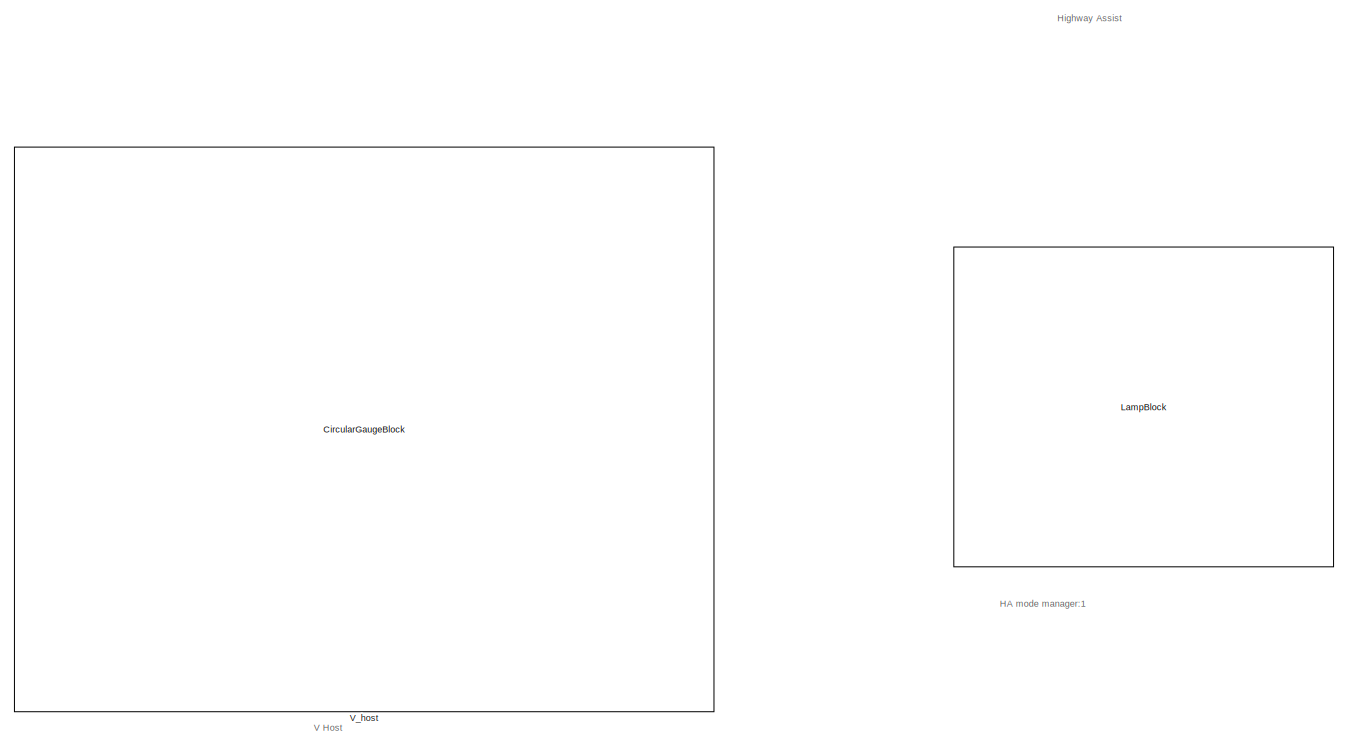
[diagram: root canvas - part 1/5, top center region]
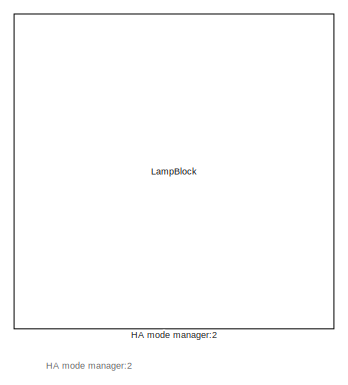
[diagram: root canvas - part 2/5, top right region]
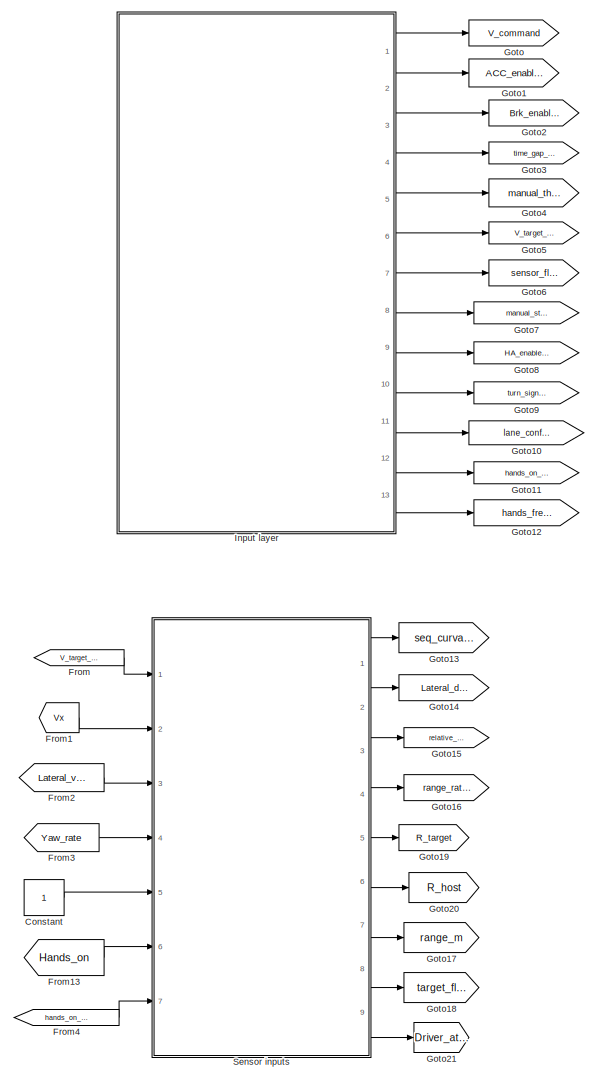
[diagram: root canvas - part 3/5, bottom left region]
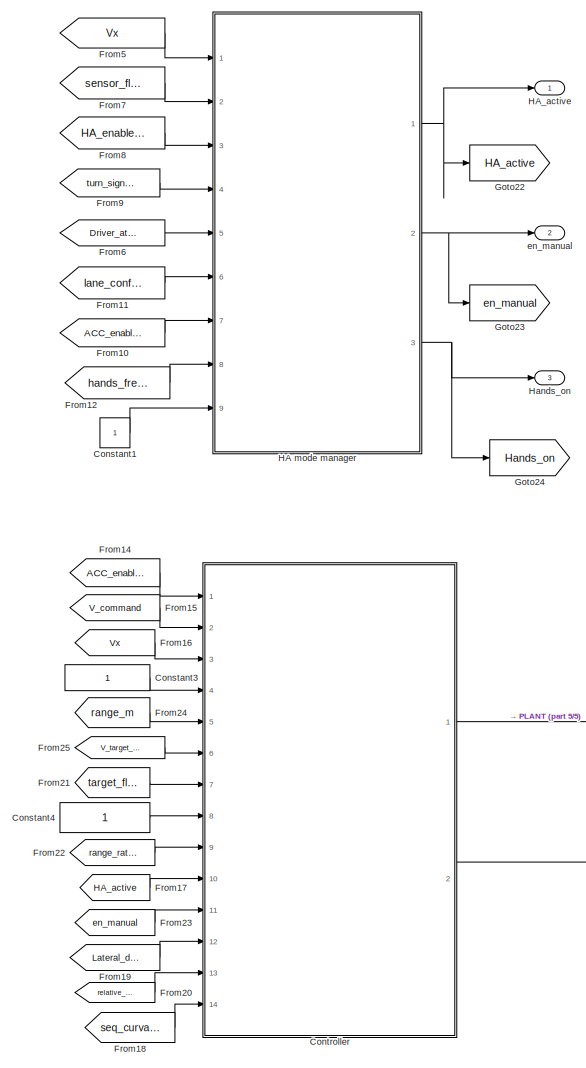
[diagram: root canvas - part 4/5, bottom center region]
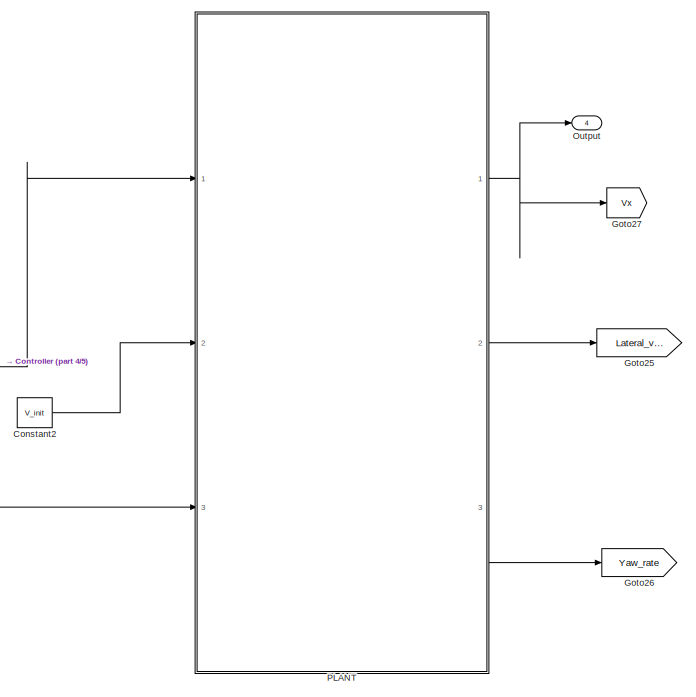
[diagram: root canvas - part 5/5, bottom right region]
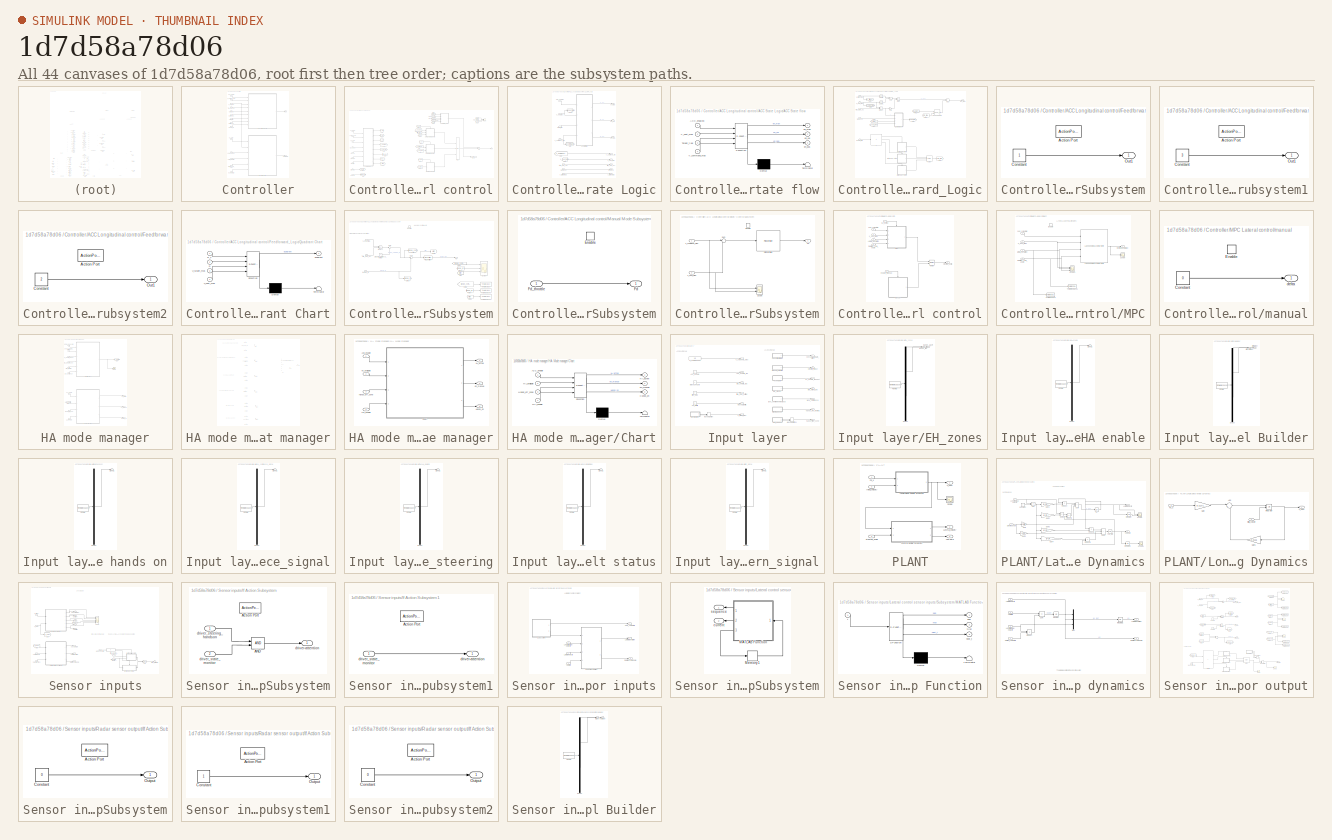
[diagram: thumbnail index - all 44 canvases of the model, root first then tree order]
MODEL slx_1d7d58a78d06
KIND model
CONFIG AbsTol = auto
CONFIG EnableMultiTasking = off
CONFIG FixedStep = auto
CONFIG MaxStep = auto
CONFIG MinStep = auto
CONFIG RelTol = 1e-3
CONFIG SampleTimeConstraint = Unconstrained
CONFIG SolverName = VariableStepAuto
CONFIG StartTime = 0.0
CONFIG StopTime = 100
BLOCK [LampBlock]  
BLOCK [Constant] Constant
BLOCK [Constant] Constant1
BLOCK [Constant] Constant2
  Value = V_init
BLOCK [Constant] Constant3
BLOCK [Constant] Constant4
BLOCK [SubSystem] Controller
  Ports = [14, 2]
  RequestExecContextInheritance = off
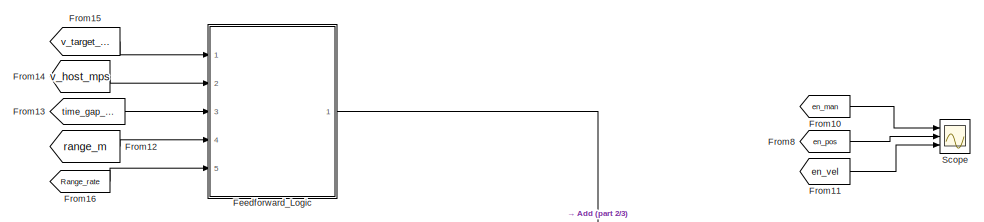
[diagram: Controller/ACC Longitudinal control - part 1/3, top right region]
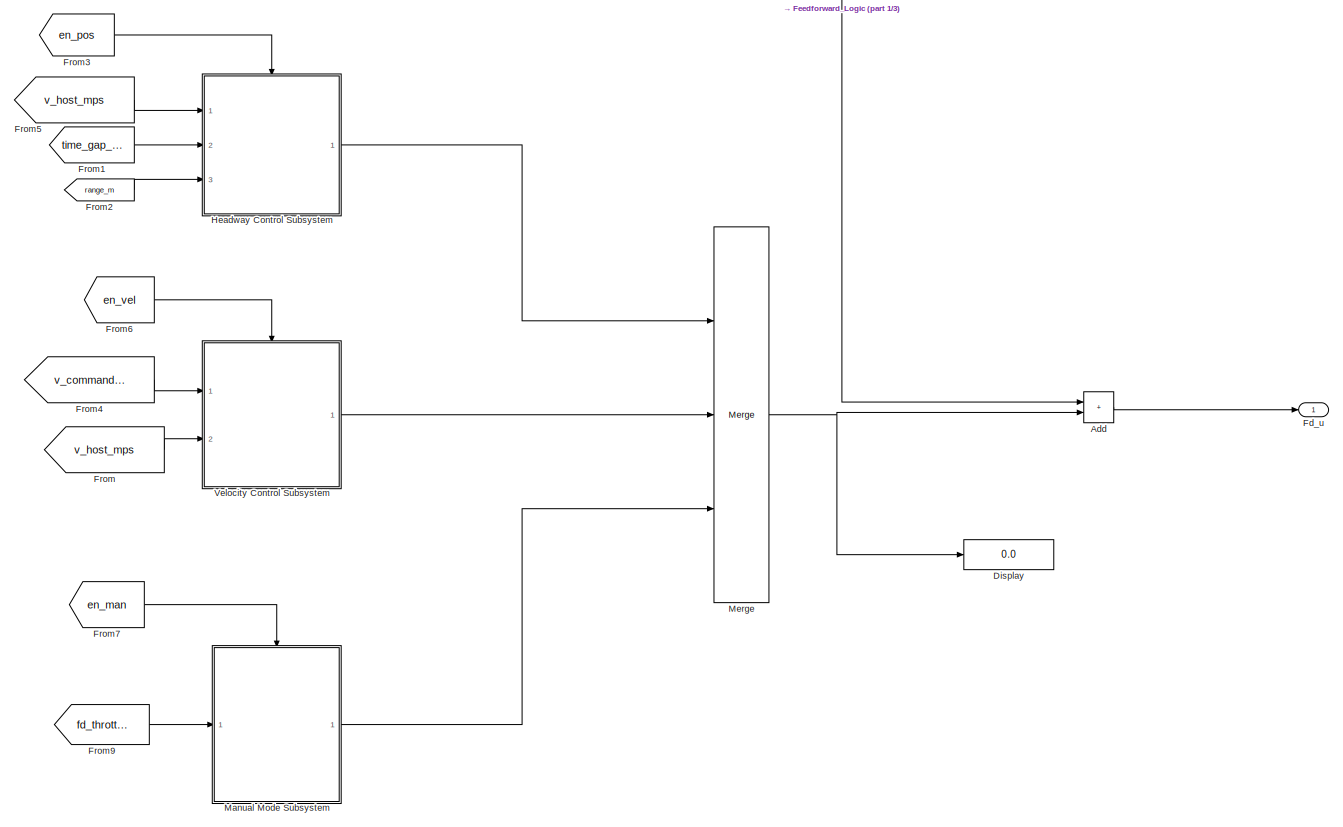
[diagram: Controller/ACC Longitudinal control - part 2/3, middle right region]
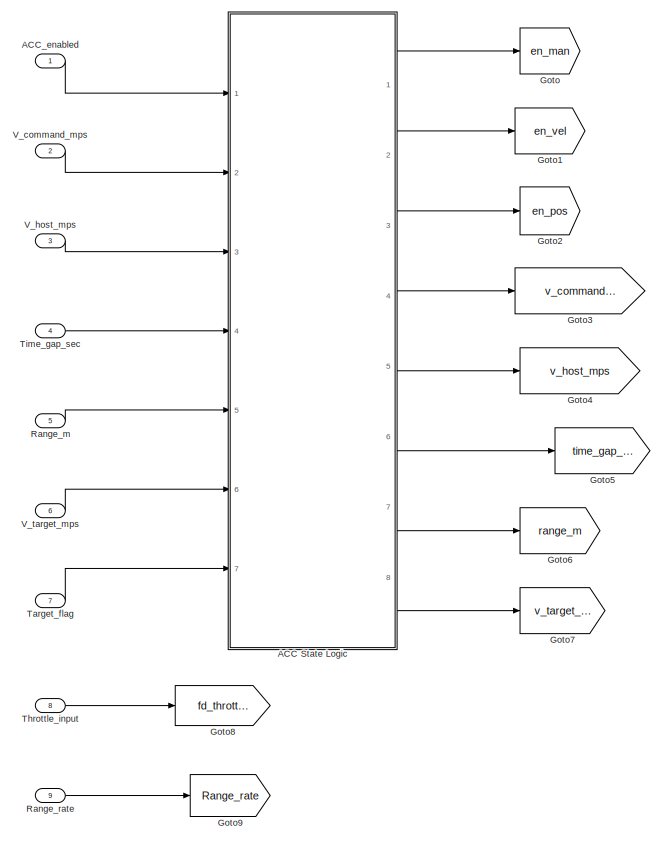
[diagram: Controller/ACC Longitudinal control - part 3/3, left side, full height]
BLOCK [SubSystem] Controller/ACC Longitudinal control
  Ports = [9, 1]
  RequestExecContextInheritance = off
BLOCK [SubSystem] Controller/ACC Longitudinal control/ACC State Logic
  Ports = [7, 8]
  RequestExecContextInheritance = off
BLOCK [SubSystem] Controller/ACC Longitudinal control/ACC State Logic/ACC State flow
  ErrorFcn = Stateflow.Translate.translate
  PermitHierarchicalResolution = ExplicitOnly
  Ports = [4, 3]
  RequestExecContextInheritance = off
  SFBlockType = Chart
  TreatAsAtomicUnit = on
BLOCK [Demux] Controller/ACC Longitudinal control/ACC State Logic/ACC State flow/ Demux 
  Outputs = 1
  Ports = [1, 1]
BLOCK [S-Function] Controller/ACC Longitudinal control/ACC State Logic/ACC State flow/ SFunction 
  EnableBusSupport = on
  FunctionName = sf_sfun
  PortCounts = [4 4]
  Ports = [4, 4]
  SFcnIsStateOwnerBlock = off
  SFunctionDeploymentMode = off
  Tag = Stateflow S-Function 2
BLOCK [Terminator] Controller/ACC Longitudinal control/ACC State Logic/ACC State flow/ Terminator 
BLOCK [Inport] Controller/ACC Longitudinal control/ACC State Logic/ACC State flow/ACC_enabled
BLOCK [Inport] Controller/ACC Longitudinal control/ACC State Logic/ACC State flow/Target_flag
  Port = 3
BLOCK [Inport] Controller/ACC Longitudinal control/ACC State Logic/ACC State flow/V_command_mps
  Port = 4
BLOCK [Inport] Controller/ACC Longitudinal control/ACC State Logic/ACC State flow/V_host_mps
  Port = 2
BLOCK [Outport] Controller/ACC Longitudinal control/ACC State Logic/ACC State flow/en_man
BLOCK [Outport] Controller/ACC Longitudinal control/ACC State Logic/ACC State flow/en_pos
  Port = 3
BLOCK [Outport] Controller/ACC Longitudinal control/ACC State Logic/ACC State flow/en_vel
  Port = 2
BLOCK [Inport] Controller/ACC Longitudinal control/ACC State Logic/ACC_enabled
BLOCK [From] Controller/ACC Longitudinal control/ACC State Logic/From
  GotoTag = v_command_mps
BLOCK [From] Controller/ACC Longitudinal control/ACC State Logic/From1
  GotoTag = v_host_mps
BLOCK [Goto] Controller/ACC Longitudinal control/ACC State Logic/Goto
  GotoTag = v_command_mps
BLOCK [Goto] Controller/ACC Longitudinal control/ACC State Logic/Goto1
  GotoTag = v_host_mps
BLOCK [Inport] Controller/ACC Longitudinal control/ACC State Logic/Range_m
  Port = 5
BLOCK [Inport] Controller/ACC Longitudinal control/ACC State Logic/Target_flag
  Port = 7
BLOCK [Inport] Controller/ACC Longitudinal control/ACC State Logic/Time_gap_sec
  Port = 4
BLOCK [Inport] Controller/ACC Longitudinal control/ACC State Logic/V_command_mps
  Port = 2
BLOCK [Inport] Controller/ACC Longitudinal control/ACC State Logic/V_host_mps
  Port = 3
BLOCK [Inport] Controller/ACC Longitudinal control/ACC State Logic/V_target_mps
  Port = 6
BLOCK [Outport] Controller/ACC Longitudinal control/ACC State Logic/en_man
BLOCK [Outport] Controller/ACC Longitudinal control/ACC State Logic/en_pos
  Port = 3
BLOCK [Outport] Controller/ACC Longitudinal control/ACC State Logic/en_vel
  Port = 2
BLOCK [Outport] Controller/ACC Longitudinal control/ACC State Logic/range_m
  Port = 7
BLOCK [Outport] Controller/ACC Longitudinal control/ACC State Logic/time_gap_sec
  Port = 6
BLOCK [Outport] Controller/ACC Longitudinal control/ACC State Logic/v_command_mps
  Port = 4
BLOCK [Outport] Controller/ACC Longitudinal control/ACC State Logic/v_host_mps
  Port = 5
BLOCK [Outport] Controller/ACC Longitudinal control/ACC State Logic/v_target_mps
  Port = 8
BLOCK [Inport] Controller/ACC Longitudinal control/ACC_enabled
BLOCK [Sum] Controller/ACC Longitudinal control/Add
  IconShape = rectangular
  Ports = [2, 1]
BLOCK [Display] Controller/ACC Longitudinal control/Display
  Decimation = 1
  Ports = [1]
BLOCK [Outport] Controller/ACC Longitudinal control/Fd_u
BLOCK [SubSystem] Controller/ACC Longitudinal control/Feedforward_Logic
  Ports = [5, 1]
  RequestExecContextInheritance = off
BLOCK [Lookup_n-D] Controller/ACC Longitudinal control/Feedforward_Logic/2-D Lookup Table
  BreakpointsForDimension1 = [1,2,3,4]
  BreakpointsForDimension2 = [1,2,3]
  InputPortMap = u0,u1
  InternalRulePriority = Speed
  Ports = [2, 1]
  RndMeth = Simplest
  Table = reshape([50,1,60,60,40,1,70,70,20,1,80,80],4,3)
BLOCK [Sum] Controller/ACC Longitudinal control/Feedforward_Logic/Add
  IconShape = rectangular
  Inputs = +-
  Ports = [2, 1]
BLOCK [Sum] Controller/ACC Longitudinal control/Feedforward_Logic/Add1
  IconShape = rectangular
  Ports = [2, 1]
BLOCK [Product] Controller/ACC Longitudinal control/Feedforward_Logic/Divide
  Inputs = */
  Multiplication = Matrix(*)
  Ports = [2, 1]
BLOCK [From] Controller/ACC Longitudinal control/Feedforward_Logic/From
  GotoTag = v_host_mps
BLOCK [From] Controller/ACC Longitudinal control/Feedforward_Logic/From1
  GotoTag = v_target_mps
BLOCK [From] Controller/ACC Longitudinal control/Feedforward_Logic/From2
  GotoTag = quadrant
BLOCK [From] Controller/ACC Longitudinal control/Feedforward_Logic/From3
  GotoTag = RR_flag
BLOCK [Gain] Controller/ACC Longitudinal control/Feedforward_Logic/Gain
  Gain = 2
BLOCK [Goto] Controller/ACC Longitudinal control/Feedforward_Logic/Goto
  GotoTag = v_host_mps
BLOCK [Goto] Controller/ACC Longitudinal control/Feedforward_Logic/Goto1
  GotoTag = v_target_mps
BLOCK [Goto] Controller/ACC Longitudinal control/Feedforward_Logic/Goto2
  GotoTag = quadrant
BLOCK [Goto] Controller/ACC Longitudinal control/Feedforward_Logic/Goto3
  GotoTag = RR_flag
BLOCK [If] Controller/ACC Longitudinal control/Feedforward_Logic/If
  ElseIfExpressions = (u1 < 5)
  IfExpression = (u1 > 10)
  Ports = [1, 3]
BLOCK [SubSystem] Controller/ACC Longitudinal control/Feedforward_Logic/If Action Subsystem
  Ports = [0, 1, 0, 0, 0, 0, 0, 1]
  RequestExecContextInheritance = off
  TreatAsAtomicUnit = on
BLOCK [ActionPort] Controller/ACC Longitudinal control/Feedforward_Logic/If Action Subsystem/Action Port
  ActionPortLabel = if((u1 > 10))
BLOCK [Constant] Controller/ACC Longitudinal control/Feedforward_Logic/If Action Subsystem/Constant
BLOCK [Outport] Controller/ACC Longitudinal control/Feedforward_Logic/If Action Subsystem/Out1
BLOCK [SubSystem] Controller/ACC Longitudinal control/Feedforward_Logic/If Action Subsystem1
  Ports = [0, 1, 0, 0, 0, 0, 0, 1]
  RequestExecContextInheritance = off
  TreatAsAtomicUnit = on
BLOCK [ActionPort] Controller/ACC Longitudinal control/Feedforward_Logic/If Action Subsystem1/Action Port
  ActionPortLabel = elseif((u1 < 5))
BLOCK [Constant] Controller/ACC Longitudinal control/Feedforward_Logic/If Action Subsystem1/Constant
  Value = 3
BLOCK [Outport] Controller/ACC Longitudinal control/Feedforward_Logic/If Action Subsystem1/Out1
BLOCK [SubSystem] Controller/ACC Longitudinal control/Feedforward_Logic/If Action Subsystem2
  Ports = [0, 1, 0, 0, 0, 0, 0, 1]
  RequestExecContextInheritance = off
  TreatAsAtomicUnit = on
BLOCK [ActionPort] Controller/ACC Longitudinal control/Feedforward_Logic/If Action Subsystem2/Action Port
  ActionPortLabel = else
BLOCK [Constant] Controller/ACC Longitudinal control/Feedforward_Logic/If Action Subsystem2/Constant
  Value = 2
BLOCK [Outport] Controller/ACC Longitudinal control/Feedforward_Logic/If Action Subsystem2/Out1
BLOCK [Merge] Controller/ACC Longitudinal control/Feedforward_Logic/Merge
  Inputs = 3
  Ports = [3, 1]
BLOCK [Product] Controller/ACC Longitudinal control/Feedforward_Logic/Product
  Ports = [2, 1]
BLOCK [SubSystem] Controller/ACC Longitudinal control/Feedforward_Logic/Quadrant Chart
  ErrorFcn = Stateflow.Translate.translate
  PermitHierarchicalResolution = ExplicitOnly
  Ports = [4, 1]
  RequestExecContextInheritance = off
  SFBlockType = Chart
  TreatAsAtomicUnit = on
BLOCK [Demux] Controller/ACC Longitudinal control/Feedforward_Logic/Quadrant Chart/ Demux 
  Outputs = 1
  Ports = [1, 1]
BLOCK [S-Function] Controller/ACC Longitudinal control/Feedforward_Logic/Quadrant Chart/ SFunction 
  EnableBusSupport = on
  FunctionName = sf_sfun
  PortCounts = [4 2]
  Ports = [4, 2]
  SFcnIsStateOwnerBlock = off
  SFunctionDeploymentMode = off
  Tag = Stateflow S-Function 4
BLOCK [Terminator] Controller/ACC Longitudinal control/Feedforward_Logic/Quadrant Chart/ Terminator 
BLOCK [Inport] Controller/ACC Longitudinal control/Feedforward_Logic/Quadrant Chart/R
  Port = 2
BLOCK [Inport] Controller/ACC Longitudinal control/Feedforward_Logic/Quadrant Chart/R_c
BLOCK [Inport] Controller/ACC Longitudinal control/Feedforward_Logic/Quadrant Chart/V_host_mps
  Port = 4
BLOCK [Inport] Controller/ACC Longitudinal control/Feedforward_Logic/Quadrant Chart/V_target_mps
  Port = 3
BLOCK [Outport] Controller/ACC Longitudinal control/Feedforward_Logic/Quadrant Chart/quadrant
BLOCK [Inport] Controller/ACC Longitudinal control/Feedforward_Logic/Range_m
  Port = 4
BLOCK [Inport] Controller/ACC Longitudinal control/Feedforward_Logic/Range_rate
  Port = 5
BLOCK [Math] Controller/ACC Longitudinal control/Feedforward_Logic/Square
  Operator = square
  Ports = [1, 1]
BLOCK [Math] Controller/ACC Longitudinal control/Feedforward_Logic/Square1
  Operator = square
  Ports = [1, 1]
BLOCK [Inport] Controller/ACC Longitudinal control/Feedforward_Logic/Time_gap_sec
  Port = 3
BLOCK [Inport] Controller/ACC Longitudinal control/Feedforward_Logic/V_host_mps
  Port = 2
BLOCK [Inport] Controller/ACC Longitudinal control/Feedforward_Logic/V_target_mps
BLOCK [Outport] Controller/ACC Longitudinal control/Feedforward_Logic/acc_theo
BLOCK [From] Controller/ACC Longitudinal control/From
  GotoTag = v_host_mps
BLOCK [From] Controller/ACC Longitudinal control/From1
  GotoTag = time_gap_sec
BLOCK [From] Controller/ACC Longitudinal control/From10
  GotoTag = en_man
BLOCK [From] Controller/ACC Longitudinal control/From11
  GotoTag = en_vel
BLOCK [From] Controller/ACC Longitudinal control/From12
  GotoTag = range_m
BLOCK [From] Controller/ACC Longitudinal control/From13
  GotoTag = time_gap_sec
BLOCK [From] Controller/ACC Longitudinal control/From14
  GotoTag = v_host_mps
BLOCK [From] Controller/ACC Longitudinal control/From15
  GotoTag = v_target_mps
BLOCK [From] Controller/ACC Longitudinal control/From16
  GotoTag = Range_rate
BLOCK [From] Controller/ACC Longitudinal control/From2
  GotoTag = range_m
BLOCK [From] Controller/ACC Longitudinal control/From3
  GotoTag = en_pos
BLOCK [From] Controller/ACC Longitudinal control/From4
  GotoTag = v_command_mps
BLOCK [From] Controller/ACC Longitudinal control/From5
  GotoTag = v_host_mps
BLOCK [From] Controller/ACC Longitudinal control/From6
  GotoTag = en_vel
BLOCK [From] Controller/ACC Longitudinal control/From7
  GotoTag = en_man
BLOCK [From] Controller/ACC Longitudinal control/From8
  GotoTag = en_pos
BLOCK [From] Controller/ACC Longitudinal control/From9
  GotoTag = fd_throttle
BLOCK [Goto] Controller/ACC Longitudinal control/Goto
  GotoTag = en_man
BLOCK [Goto] Controller/ACC Longitudinal control/Goto1
  GotoTag = en_vel
BLOCK [Goto] Controller/ACC Longitudinal control/Goto2
  GotoTag = en_pos
BLOCK [Goto] Controller/ACC Longitudinal control/Goto3
  GotoTag = v_command_mps
BLOCK [Goto] Controller/ACC Longitudinal control/Goto4
  GotoTag = v_host_mps
BLOCK [Goto] Controller/ACC Longitudinal control/Goto5
  GotoTag = time_gap_sec
BLOCK [Goto] Controller/ACC Longitudinal control/Goto6
  GotoTag = range_m
BLOCK [Goto] Controller/ACC Longitudinal control/Goto7
  GotoTag = v_target_mps
BLOCK [Goto] Controller/ACC Longitudinal control/Goto8
  GotoTag = fd_throttle
BLOCK [Goto] Controller/ACC Longitudinal control/Goto9
  GotoTag = Range_rate
BLOCK [SubSystem] Controller/ACC Longitudinal control/Headway Control Subsystem
  Ports = [3, 1, 1]
  RequestExecContextInheritance = off
BLOCK [EnablePort] Controller/ACC Longitudinal control/Headway Control Subsystem/Enable
  Ports = []
BLOCK [Outport] Controller/ACC Longitudinal control/Headway Control Subsystem/Fd
BLOCK [From] Controller/ACC Longitudinal control/Headway Control Subsystem/From
  GotoTag = error
BLOCK [From] Controller/ACC Longitudinal control/Headway Control Subsystem/From1
  GotoTag = range_m
BLOCK [From] Controller/ACC Longitudinal control/Headway Control Subsystem/From2
  GotoTag = range_command_m
BLOCK [From] Controller/ACC Longitudinal control/Headway Control Subsystem/From3
  GotoTag = range_command_m
BLOCK [From] Controller/ACC Longitudinal control/Headway Control Subsystem/From4
  GotoTag = range_m
BLOCK [From] Controller/ACC Longitudinal control/Headway Control Subsystem/From5
  GotoTag = error
BLOCK [Goto] Controller/ACC Longitudinal control/Headway Control Subsystem/Goto
  GotoTag = range_command_m
BLOCK [Goto] Controller/ACC Longitudinal control/Headway Control Subsystem/Goto1
  GotoTag = error
BLOCK [Goto] Controller/ACC Longitudinal control/Headway Control Subsystem/Goto2
  GotoTag = range_m
BLOCK [Reference] Controller/ACC Longitudinal control/Headway Control Subsystem/PID Controller  REF=pid_lib/PID Controller
  Ports = [1, 1]
  SourceBlock = pid_lib/PID Controller
  SourceProductBaseCode = SL
  SourceType = PID 1dof
BLOCK [Product] Controller/ACC Longitudinal control/Headway Control Subsystem/Product
  Ports = [2, 1]
BLOCK [Inport] Controller/ACC Longitudinal control/Headway Control Subsystem/Range_m
  Port = 3
BLOCK [Scope] Controller/ACC Longitudinal control/Headway Control Subsystem/Scope
  Floating = off
  NumInputPorts = 3
  Ports = [3]
  ScopeSpecificationString = Simulink.scopes.TimeScopeBlockCfg('CurrentConfiguration', extmgr.ConfigurationSet(extmgr.Configuration('Core','General UI',true),extmgr.Configuration('Core','Source UI',true),extmgr.Configuration('Sources','WiredSimulink',true,'DataLoggingSaveFormat','Array','DataLoggingDecimation','1','DataLoggingVariableName','ScopeData1'),extmgr.Configuration('Visuals','Time Domain',true,'SerializedDisplays',{s...<+2291ch>
BLOCK [Constant] Controller/ACC Longitudinal control/Headway Control Subsystem/Stopping_distance_meters
BLOCK [Sum] Controller/ACC Longitudinal control/Headway Control Subsystem/Sum
  Inputs = |++
  Ports = [2, 1]
BLOCK [Sum] Controller/ACC Longitudinal control/Headway Control Subsystem/Sum1
  Inputs = |-+
  Ports = [2, 1]
BLOCK [Inport] Controller/ACC Longitudinal control/Headway Control Subsystem/Time_gap_sec
  Port = 2
BLOCK [ToWorkspace] Controller/ACC Longitudinal control/Headway Control Subsystem/To Workspace
  FixptAsFi = on
  MaxDataPoints = inf
  Ports = [1]
  SampleTime = -1
  VariableName = Range_command_m
BLOCK [ToWorkspace] Controller/ACC Longitudinal control/Headway Control Subsystem/To Workspace1
  FixptAsFi = on
  MaxDataPoints = inf
  Ports = [1]
  SampleTime = -1
  VariableName = Range_m
BLOCK [ToWorkspace] Controller/ACC Longitudinal control/Headway Control Subsystem/To Workspace2
  FixptAsFi = on
  MaxDataPoints = inf
  Ports = [1]
  SampleTime = -1
  SaveFormat = Timeseries
  VariableName = Headway_error
BLOCK [Inport] Controller/ACC Longitudinal control/Headway Control Subsystem/V_host_mps
BLOCK [SubSystem] Controller/ACC Longitudinal control/Manual Mode Subsystem
  Ports = [1, 1, 1]
  RequestExecContextInheritance = off
BLOCK [EnablePort] Controller/ACC Longitudinal control/Manual Mode Subsystem/Enable
  Ports = []
BLOCK [Outport] Controller/ACC Longitudinal control/Manual Mode Subsystem/Fd
BLOCK [Inport] Controller/ACC Longitudinal control/Manual Mode Subsystem/Fd_throttle
BLOCK [Merge] Controller/ACC Longitudinal control/Merge
  Inputs = 3
  Ports = [3, 1]
BLOCK [Inport] Controller/ACC Longitudinal control/Range_m
  Port = 5
BLOCK [Inport] Controller/ACC Longitudinal control/Range_rate
  Port = 9
BLOCK [Scope] Controller/ACC Longitudinal control/Scope
  Floating = off
  NumInputPorts = 3
  Ports = [3]
  ScopeSpecificationString = Simulink.scopes.TimeScopeBlockCfg('CurrentConfiguration', extmgr.ConfigurationSet(extmgr.Configuration('Core','General UI',true),extmgr.Configuration('Core','Source UI',true),extmgr.Configuration('Sources','WiredSimulink',true,'DataLoggingSaveFormat','Array','DataLoggingDecimation','1','DataLoggingVariableName','ScopeData2'),extmgr.Configuration('Visuals','Time Domain',true,'SerializedDisplays',{s...<+2849ch>
BLOCK [Inport] Controller/ACC Longitudinal control/Target_flag
  Port = 7
BLOCK [Inport] Controller/ACC Longitudinal control/Throttle_input
  Port = 8
BLOCK [Inport] Controller/ACC Longitudinal control/Time_gap_sec
  Port = 4
BLOCK [Inport] Controller/ACC Longitudinal control/V_command_mps
  Port = 2
BLOCK [Inport] Controller/ACC Longitudinal control/V_host_mps
  Port = 3
BLOCK [Inport] Controller/ACC Longitudinal control/V_target_mps
  Port = 6
BLOCK [SubSystem] Controller/ACC Longitudinal control/Velocity Control Subsystem
  Ports = [2, 1, 1]
  RequestExecContextInheritance = off
BLOCK [EnablePort] Controller/ACC Longitudinal control/Velocity Control Subsystem/Enable
  Ports = []
BLOCK [Outport] Controller/ACC Longitudinal control/Velocity Control Subsystem/Fd
BLOCK [Reference] Controller/ACC Longitudinal control/Velocity Control Subsystem/PID Controller  REF=pid_lib/PID Controller
  Ports = [1, 1]
  SourceBlock = pid_lib/PID Controller
  SourceProductBaseCode = SL
  SourceType = PID 1dof
BLOCK [Scope] Controller/ACC Longitudinal control/Velocity Control Subsystem/Scope
  Floating = off
  NumInputPorts = 2
  Ports = [2]
  ScopeSpecificationString = Simulink.scopes.TimeScopeBlockCfg('CurrentConfiguration', extmgr.ConfigurationSet(extmgr.Configuration('Core','General UI',true),extmgr.Configuration('Core','Source UI',true),extmgr.Configuration('Sources','WiredSimulink',true,'DataLoggingSaveFormat','Array','DataLoggingDecimation','1','DataLoggingVariableName','ScopeData2'),extmgr.Configuration('Visuals','Time Domain',true,'SerializedDisplays',{s...<+1699ch>
BLOCK [Sum] Controller/ACC Longitudinal control/Velocity Control Subsystem/Sum
  Inputs = |+-
  Ports = [2, 1]
BLOCK [Inport] Controller/ACC Longitudinal control/Velocity Control Subsystem/V_command_mps
BLOCK [Inport] Controller/ACC Longitudinal control/Velocity Control Subsystem/V_host_mps
  Port = 2
BLOCK [Inport] Controller/ACC_enabled
BLOCK [Outport] Controller/Fd_u
BLOCK [Inport] Controller/HA_active
  Port = 10
BLOCK [Inport] Controller/Lateral_deviation
  Port = 12
BLOCK [SubSystem] Controller/MPC Lateral control
  Ports = [6, 1]
  RequestExecContextInheritance = off
BLOCK [Inport] Controller/MPC Lateral control/HA_active
BLOCK [Inport] Controller/MPC Lateral control/Lateral_deviation
  Port = 4
BLOCK [SubSystem] Controller/MPC Lateral control/MPC
  Ports = [4, 1, 1]
  RequestExecContextInheritance = off
BLOCK [EnablePort] Controller/MPC Lateral control/MPC/Enable
  Ports = []
BLOCK [Reference] Controller/MPC Lateral control/MPC/Lane Keeping Assist System  REF=mpcadaslib/Lane Keeping Assist System
  Ports = [4, 1]
  SourceBlock = mpcadaslib/Lane Keeping Assist System
  SourceProductBaseCode = MP
  SourceType = Lane Keeping Assist (LKA) System
BLOCK [Inport] Controller/MPC Lateral control/MPC/Relative_yaw_angle
  Port = 4
BLOCK [Scope] Controller/MPC Lateral control/MPC/Scope
  Floating = off
  NumInputPorts = 1
  Ports = [1]
  ScopeSpecificationString = Simulink.scopes.TimeScopeBlockCfg('CurrentConfiguration', extmgr.ConfigurationSet(extmgr.Configuration('Core','General UI',true),extmgr.Configuration('Core','Source UI',true),extmgr.Configuration('Sources','WiredSimulink',true,'DataLoggingVariableName','ScopeData1'),extmgr.Configuration('Visuals','Time Domain',true,'SerializedDisplays',{struct('MinYLimReal','-0.39665','MaxYLimReal','0.18835','YLab...<+1412ch>
BLOCK [Scope] Controller/MPC Lateral control/MPC/Scope1
  Floating = off
  NumInputPorts = 3
  Ports = [3]
  ScopeSpecificationString = Simulink.scopes.TimeScopeBlockCfg('CurrentConfiguration', extmgr.ConfigurationSet(extmgr.Configuration('Core','General UI',true),extmgr.Configuration('Core','Source UI',true),extmgr.Configuration('Sources','WiredSimulink',true,'DataLoggingVariableName','ScopeData2'),extmgr.Configuration('Visuals','Time Domain',true,'SerializedDisplays',{struct('MinYLimReal','-1.99311','MaxYLimReal','0.38971','YLab...<+2030ch>
BLOCK [ToWorkspace] Controller/MPC Lateral control/MPC/To Workspace
  FixptAsFi = on
  MaxDataPoints = inf
  Ports = [1]
  SampleTime = -1
  VariableName = cross_track
BLOCK [ToWorkspace] Controller/MPC Lateral control/MPC/To Workspace1
  FixptAsFi = on
  MaxDataPoints = inf
  Ports = [1]
  SampleTime = -1
  VariableName = Theta_e
BLOCK [Inport] Controller/MPC Lateral control/MPC/V_host_mps
  Port = 2
BLOCK [Inport] Controller/MPC Lateral control/MPC/lateral_deviation
  Port = 3
BLOCK [Inport] Controller/MPC Lateral control/MPC/seq_curvature
BLOCK [Outport] Controller/MPC Lateral control/MPC/steering angle (rad)
BLOCK [Merge] Controller/MPC Lateral control/Merge
  Ports = [2, 1]
BLOCK [Inport] Controller/MPC Lateral control/Relative_yaw_angle
  Port = 5
BLOCK [Inport] Controller/MPC Lateral control/V_host_mps
  Port = 2
BLOCK [Inport] Controller/MPC Lateral control/enable_manual
  Port = 3
BLOCK [SubSystem] Controller/MPC Lateral control/manual
  Ports = [0, 1, 1]
  RequestExecContextInheritance = off
BLOCK [Constant] Controller/MPC Lateral control/manual/Constant
  Value = 0
BLOCK [EnablePort] Controller/MPC Lateral control/manual/Enable
  Ports = []
BLOCK [Outport] Controller/MPC Lateral control/manual/delta
BLOCK [Inport] Controller/MPC Lateral control/seq_curvature
  Port = 6
BLOCK [Outport] Controller/MPC Lateral control/steering_delta
BLOCK [Inport] Controller/Range_m
  Port = 5
BLOCK [Inport] Controller/Range_rate
  Port = 9
BLOCK [Inport] Controller/Relative_yaw_angle
  Port = 13
BLOCK [Inport] Controller/Target_flag
  Port = 7
BLOCK [Inport] Controller/Throttle_input
  Port = 8
BLOCK [Inport] Controller/Time_gap_sec
  Port = 4
BLOCK [Inport] Controller/V_command_mps
  Port = 2
BLOCK [Inport] Controller/V_host_mps
  Port = 3
BLOCK [Inport] Controller/V_target_mps
  Port = 6
BLOCK [Inport] Controller/enable_manual
  Port = 11
BLOCK [Inport] Controller/seq_curvature
  Port = 14
BLOCK [Outport] Controller/steering-delta
  Port = 2
BLOCK [From] From
  GotoTag = V_target_mps
BLOCK [From] From1
  GotoTag = Vx
BLOCK [From] From10
  GotoTag = ACC_enable_rq
BLOCK [From] From11
  GotoTag = lane_confidence
BLOCK [From] From12
  GotoTag = hands_free_zone
BLOCK [From] From13
  GotoTag = Hands_on
BLOCK [From] From14
  GotoTag = ACC_enable_rq
BLOCK [From] From15
  GotoTag = V_command
BLOCK [From] From16
  GotoTag = Vx
BLOCK [From] From17
  GotoTag = HA_active
BLOCK [From] From18
  GotoTag = seq_curvature
BLOCK [From] From19
  GotoTag = Lateral_deviation
BLOCK [From] From2
  GotoTag = Lateral_velocity
BLOCK [From] From20
  GotoTag = relative_yaw
BLOCK [From] From21
  GotoTag = target_flag
BLOCK [From] From22
  GotoTag = range_rate_mps
BLOCK [From] From23
  GotoTag = en_manual
BLOCK [From] From24
  GotoTag = range_m
BLOCK [From] From25
  GotoTag = V_target_mps
BLOCK [From] From3
  GotoTag = Yaw_rate
BLOCK [From] From4
  GotoTag = hands_on_steering
BLOCK [From] From5
  GotoTag = Vx
BLOCK [From] From6
  GotoTag = Driver_attn
BLOCK [From] From7
  GotoTag = sensor_flag
BLOCK [From] From8
  GotoTag = HA_enable_request
BLOCK [From] From9
  GotoTag = turn_signal_request
BLOCK [Goto] Goto
  GotoTag = V_command
BLOCK [Goto] Goto1
  GotoTag = ACC_enable_rq
BLOCK [Goto] Goto10
  GotoTag = lane_confidence
BLOCK [Goto] Goto11
  GotoTag = hands_on_steering
BLOCK [Goto] Goto12
  GotoTag = hands_free_zone
BLOCK [Goto] Goto13
  GotoTag = seq_curvature
BLOCK [Goto] Goto14
  GotoTag = Lateral_deviation
BLOCK [Goto] Goto15
  GotoTag = relative_yaw
BLOCK [Goto] Goto16
  GotoTag = range_rate_mps
BLOCK [Goto] Goto17
  GotoTag = range_m
BLOCK [Goto] Goto18
  GotoTag = target_flag
BLOCK [Goto] Goto19
  GotoTag = R_target
BLOCK [Goto] Goto2
  GotoTag = Brk_enable_rq
BLOCK [Goto] Goto20
  GotoTag = R_host
BLOCK [Goto] Goto21
  GotoTag = Driver_attn
BLOCK [Goto] Goto22
  GotoTag = HA_active
BLOCK [Goto] Goto23
  GotoTag = en_manual
BLOCK [Goto] Goto24
  GotoTag = Hands_on
BLOCK [Goto] Goto25
  GotoTag = Lateral_velocity
BLOCK [Goto] Goto26
  GotoTag = Yaw_rate
BLOCK [Goto] Goto27
  GotoTag = Vx
BLOCK [Goto] Goto3
  GotoTag = time_gap_setting
BLOCK [Goto] Goto4
  GotoTag = manual_throttle
BLOCK [Goto] Goto5
  GotoTag = V_target_mps
BLOCK [Goto] Goto6
  GotoTag = sensor_flag
BLOCK [Goto] Goto7
  GotoTag = manual_steering_io
BLOCK [Goto] Goto8
  GotoTag = HA_enable_request
BLOCK [Goto] Goto9
  GotoTag = turn_signal_request
BLOCK [SubSystem] HA mode manager
  Ports = [9, 3]
  RequestExecContextInheritance = off
BLOCK [Inport] HA mode manager/Acc_enable
  Port = 7
BLOCK [SubSystem] HA mode manager/Fault manager
  Ports = [6, 1]
  RequestExecContextInheritance = off
BLOCK [Inport] HA mode manager/Fault manager/	HA_enable_request
  Port = 3
BLOCK [Inport] HA mode manager/Fault manager/	driver_attention
  Port = 5
BLOCK [Inport] HA mode manager/Fault manager/	lane_confidence
  Port = 6
BLOCK [Inport] HA mode manager/Fault manager/	turn_signal_request
  Port = 4
BLOCK [Logic] HA mode manager/Fault manager/AND
  AllPortsSameDT = off
  Inputs = 7
  OutDataTypeStr = boolean
  Ports = [7, 1]
BLOCK [Constant] HA mode manager/Fault manager/Constant
BLOCK [Constant] HA mode manager/Fault manager/Constant1
  Value = 0
BLOCK [Constant] HA mode manager/Fault manager/Constant10
BLOCK [Constant] HA mode manager/Fault manager/Constant11
  Value = 0
BLOCK [Constant] HA mode manager/Fault manager/Constant2
  Value = 0
BLOCK [Constant] HA mode manager/Fault manager/Constant3
BLOCK [Constant] HA mode manager/Fault manager/Constant4
BLOCK [Constant] HA mode manager/Fault manager/Constant5
  Value = 0
BLOCK [Constant] HA mode manager/Fault manager/Constant6
  Value = 0
BLOCK [Constant] HA mode manager/Fault manager/Constant7
BLOCK [Constant] HA mode manager/Fault manager/Constant8
BLOCK [Constant] HA mode manager/Fault manager/Constant9
  Value = 0
BLOCK [Outport] HA mode manager/Fault manager/HA_available
BLOCK [Scope] HA mode manager/Fault manager/Scope
  Floating = off
  NumInputPorts = 1
  Ports = [1]
  ScopeSpecificationString = Simulink.scopes.TimeScopeBlockCfg('CurrentConfiguration', extmgr.ConfigurationSet(extmgr.Configuration('Core','General UI',true),extmgr.Configuration('Core','Source UI',true),extmgr.Configuration('Sources','WiredSimulink',true),extmgr.Configuration('Visuals','Time Domain',true),extmgr.Configuration('Tools','Plot Navigation',true),extmgr.Configuration('Tools','Measurements',true,'Version','2021a'))...<+19ch>
BLOCK [Switch] HA mode manager/Fault manager/Switch
  InputSameDT = off
  SaturateOnIntegerOverflow = off
  Threshold = 9
BLOCK [Switch] HA mode manager/Fault manager/Switch1
  Criteria = u2 ~= 0
  InputSameDT = off
  SaturateOnIntegerOverflow = off
BLOCK [Switch] HA mode manager/Fault manager/Switch2
  Criteria = u2 ~= 0
  InputSameDT = off
  SaturateOnIntegerOverflow = off
BLOCK [Switch] HA mode manager/Fault manager/Switch3
  Criteria = u2 ~= 0
  InputSameDT = off
  SaturateOnIntegerOverflow = off
BLOCK [Switch] HA mode manager/Fault manager/Switch4
  Criteria = u2 ~= 0
  InputSameDT = off
  SaturateOnIntegerOverflow = off
BLOCK [Switch] HA mode manager/Fault manager/Switch5
  Criteria = u2 ~= 0
  InputSameDT = off
  SaturateOnIntegerOverflow = off
BLOCK [Inport] HA mode manager/Fault manager/sensor_hardware_status
  Port = 2
BLOCK [Inport] HA mode manager/Fault manager/vehicle_speed_mps
BLOCK [From] HA mode manager/From
  GotoTag = HA_enable
BLOCK [Goto] HA mode manager/Goto
  GotoTag = HA_enable
BLOCK [SubSystem] HA mode manager/HA Mode manager
  Ports = [4, 3]
  RequestExecContextInheritance = off
BLOCK [Inport] HA mode manager/HA Mode manager/ACC_enable
BLOCK [SubSystem] HA mode manager/HA Mode manager/Chart
  ErrorFcn = Stateflow.Translate.translate
  PermitHierarchicalResolution = ExplicitOnly
  Ports = [4, 3]
  RequestExecContextInheritance = off
  SFBlockType = Chart
  TreatAsAtomicUnit = on
BLOCK [Demux] HA mode manager/HA Mode manager/Chart/ Demux 
  Outputs = 1
  Ports = [1, 1]
BLOCK [S-Function] HA mode manager/HA Mode manager/Chart/ SFunction 
  EnableBusSupport = on
  FunctionName = sf_sfun
  PortCounts = [4 4]
  Ports = [4, 4]
  SFcnIsStateOwnerBlock = off
  SFunctionDeploymentMode = off
  Tag = Stateflow S-Function 3
BLOCK [Terminator] HA mode manager/HA Mode manager/Chart/ Terminator 
BLOCK [Inport] HA mode manager/HA Mode manager/Chart/ACC_enable
BLOCK [Outport] HA mode manager/HA Mode manager/Chart/HA_active
BLOCK [Inport] HA mode manager/HA Mode manager/Chart/HA_available
  Port = 2
BLOCK [Inport] HA mode manager/HA Mode manager/Chart/Hands_off_zone
  Port = 3
BLOCK [Outport] HA mode manager/HA Mode manager/Chart/Hands_on
  Port = 3
BLOCK [Inport] HA mode manager/HA Mode manager/Chart/LCA_enable
  Port = 4
BLOCK [Outport] HA mode manager/HA Mode manager/Chart/en_manual
  Port = 2
BLOCK [Outport] HA mode manager/HA Mode manager/HA_active
BLOCK [Inport] HA mode manager/HA Mode manager/HA_available
  Port = 2
BLOCK [Inport] HA mode manager/HA Mode manager/Hands_off_zone
  Port = 3
BLOCK [Outport] HA mode manager/HA Mode manager/Hands_on
  Port = 3
BLOCK [Inport] HA mode manager/HA Mode manager/LCA_enable
  Port = 4
BLOCK [Outport] HA mode manager/HA Mode manager/en_manual
  Port = 2
BLOCK [Outport] HA mode manager/HA_active
BLOCK [Inport] HA mode manager/HA_enable_request
  Port = 3
BLOCK [Inport] HA mode manager/Hands_off_zone
  Port = 8
BLOCK [Outport] HA mode manager/Hands_on
  Port = 3
BLOCK [Inport] HA mode manager/LCA_enable
  Port = 9
BLOCK [Scope] HA mode manager/Scope
  Floating = off
  NumInputPorts = 1
  Ports = [1]
  ScopeSpecificationString = Simulink.scopes.TimeScopeBlockCfg('CurrentConfiguration', extmgr.ConfigurationSet(extmgr.Configuration('Core','General UI',true),extmgr.Configuration('Core','Source UI',true),extmgr.Configuration('Sources','WiredSimulink',true,'DataLoggingVariableName','ScopeData1'),extmgr.Configuration('Visuals','Time Domain',true),extmgr.Configuration('Tools','Plot Navigation',true),extmgr.Configuration('Tools',...<+40ch>
BLOCK [Inport] HA mode manager/driver_attention
  Port = 5
BLOCK [Outport] HA mode manager/en_manual
  Port = 2
BLOCK [Inport] HA mode manager/lane_confidence
  Port = 6
BLOCK [Inport] HA mode manager/sensor_hardware_status
  Port = 2
BLOCK [Inport] HA mode manager/turn_signal_request
  Port = 4
BLOCK [Inport] HA mode manager/vehicle_speed_mps
BLOCK [LampBlock] HA mode manager:2
BLOCK [Outport] HA_active
BLOCK [Outport] Hands_on
  Port = 3
BLOCK [SubSystem] Input layer
  Ports = [0, 13]
  RequestExecContextInheritance = off
BLOCK [Constant] Input layer/ACC_enable
BLOCK [Outport] Input layer/ACC_enable_req
  Port = 2
BLOCK [Constant] Input layer/Brake_enable
  Value = 0
BLOCK [Outport] Input layer/Brk_enable_req
  Port = 3
BLOCK [SubSystem] Input layer/EH_zones
  ClipboardFcn = sigbuilder_block('clipboard');
  CloseFcn = sigbuilder_block('close');
  ContinueFcn = sigbuilder_block('continue');
  CopyFcn = sigbuilder_block('copy');
  DeleteFcn = sigbuilder_block('delete');
  LoadFcn = sigbuilder_block('load');
  MaskHideContents = on
  ModelCloseFcn = sigbuilder_block('modelClose');
  NameChangeFcn = sigbuilder_block('namechange');
  OpenFcn = sigbuilder_block('open',[320.25 248.25 550.5 359.25 ]);
  PauseFcn = sigbuilder_block('pause');
  Ports = [0, 2]
  PreSaveFcn = sigbuilder_block('preSave');
  RequestExecContextInheritance = off
  StartFcn = sigbuilder_block('start');
  StopFcn = sigbuilder_block('stop');
  Tag = STV Subsys
BLOCK [Demux] Input layer/EH_zones/Demux
  DisplayOption = none
  Outputs = 2
  Ports = [1, 2]
  Tag = STV Demux
BLOCK [FromWorkspace] Input layer/EH_zones/FromWs
  Tag = STV FromWs
  VariableName = tuvar
BLOCK [Outport] Input layer/EH_zones/Hands_all_off
  Port = 2
  Tag = STV Outport
BLOCK [Outport] Input layer/EH_zones/Hands_free
  Tag = STV Outport
BLOCK [Constant] Input layer/Fd_throttle
  Value = 3
BLOCK [SubSystem] Input layer/HA enable
  ClipboardFcn = sigbuilder_block('clipboard');
  CloseFcn = sigbuilder_block('close');
  ContinueFcn = sigbuilder_block('continue');
  CopyFcn = sigbuilder_block('copy');
  DeleteFcn = sigbuilder_block('delete');
  LoadFcn = sigbuilder_block('load');
  MaskHideContents = on
  ModelCloseFcn = sigbuilder_block('modelClose');
  NameChangeFcn = sigbuilder_block('namechange');
  OpenFcn = sigbuilder_block('open',[437.6 199.2 550.4 400 ]);
  PauseFcn = sigbuilder_block('pause');
  Ports = [0, 1]
  PreSaveFcn = sigbuilder_block('preSave');
  RequestExecContextInheritance = off
  StartFcn = sigbuilder_block('start');
  StopFcn = sigbuilder_block('stop');
  Tag = STV Subsys
BLOCK [Demux] Input layer/HA enable/Demux
  DisplayOption = none
  Outputs = 1
  Ports = [1, 1]
  Tag = STV Demux
BLOCK [FromWorkspace] Input layer/HA enable/FromWs
  Tag = STV FromWs
  VariableName = tuvar
BLOCK [Outport] Input layer/HA enable/Signal 1
  Tag = STV Outport
BLOCK [Outport] Input layer/HA_enable_request
  Port = 9
BLOCK [ManualSwitch] Input layer/Manual Switch
BLOCK [ManualSwitch] Input layer/Manual Switch1
  CurrentSetting = 0
BLOCK [SubSystem] Input layer/Signal Builder
  ClipboardFcn = sigbuilder_block('clipboard');
  CloseFcn = sigbuilder_block('close');
  ContinueFcn = sigbuilder_block('continue');
  CopyFcn = sigbuilder_block('copy');
  DeleteFcn = sigbuilder_block('delete');
  LoadFcn = sigbuilder_block('load');
  MaskHideContents = on
  ModelCloseFcn = sigbuilder_block('modelClose');
  NameChangeFcn = sigbuilder_block('namechange');
  OpenFcn = sigbuilder_block('open',[299.25 217.5 550.5 359.25 ]);
  PauseFcn = sigbuilder_block('pause');
  Ports = [0, 2]
  PreSaveFcn = sigbuilder_block('preSave');
  RequestExecContextInheritance = off
  StartFcn = sigbuilder_block('start');
  StopFcn = sigbuilder_block('stop');
  Tag = STV Subsys
BLOCK [Demux] Input layer/Signal Builder/Demux
  DisplayOption = none
  Outputs = 2
  Ports = [1, 2]
  Tag = STV Demux
BLOCK [FromWorkspace] Input layer/Signal Builder/FromWs
  Tag = STV FromWs
  VariableName = tuvar
BLOCK [Outport] Input layer/Signal Builder/with target
  Port = 2
  Tag = STV Outport
BLOCK [Outport] Input layer/Signal Builder/without target
  Tag = STV Outport
BLOCK [Constant] Input layer/V_commanded
  Value = 16
BLOCK [Outport] Input layer/V_setspeed_mps
BLOCK [Outport] Input layer/V_target_mps
  Port = 6
BLOCK [SubSystem] Input layer/driver hands on
  ClipboardFcn = sigbuilder_block('clipboard');
  CloseFcn = sigbuilder_block('close');
  ContinueFcn = sigbuilder_block('continue');
  CopyFcn = sigbuilder_block('copy');
  DeleteFcn = sigbuilder_block('delete');
  LoadFcn = sigbuilder_block('load');
  MaskHideContents = on
  ModelCloseFcn = sigbuilder_block('modelClose');
  NameChangeFcn = sigbuilder_block('namechange');
  OpenFcn = sigbuilder_block('open',[403.5 199.2 550.5 359.55 ]);
  PauseFcn = sigbuilder_block('pause');
  Ports = [0, 1]
  PreSaveFcn = sigbuilder_block('preSave');
  RequestExecContextInheritance = off
  StartFcn = sigbuilder_block('start');
  StopFcn = sigbuilder_block('stop');
  Tag = STV Subsys
BLOCK [Demux] Input layer/driver hands on/Demux
  DisplayOption = none
  Outputs = 1
  Ports = [1, 1]
  Tag = STV Demux
BLOCK [FromWorkspace] Input layer/driver hands on/FromWs
  Tag = STV FromWs
  VariableName = tuvar
BLOCK [Outport] Input layer/driver hands on/Signal 1
  Tag = STV Outport
BLOCK [Outport] Input layer/hands_free_zone
  Port = 13
BLOCK [Outport] Input layer/hands_on_steering
  Port = 12
BLOCK [Outport] Input layer/lane_confidence
  Port = 11
BLOCK [SubSystem] Input layer/lane_confidence_signal
  ClipboardFcn = sigbuilder_block('clipboard');
  CloseFcn = sigbuilder_block('close');
  ContinueFcn = sigbuilder_block('continue');
  CopyFcn = sigbuilder_block('copy');
  DeleteFcn = sigbuilder_block('delete');
  LoadFcn = sigbuilder_block('load');
  MaskHideContents = on
  ModelCloseFcn = sigbuilder_block('modelClose');
  NameChangeFcn = sigbuilder_block('namechange');
  OpenFcn = sigbuilder_block('open',[437.6 199.2 550.4 400 ]);
  PauseFcn = sigbuilder_block('pause');
  Ports = [0, 1]
  PreSaveFcn = sigbuilder_block('preSave');
  RequestExecContextInheritance = off
  StartFcn = sigbuilder_block('start');
  StopFcn = sigbuilder_block('stop');
  Tag = STV Subsys
BLOCK [Demux] Input layer/lane_confidence_signal/Demux
  DisplayOption = none
  Outputs = 1
  Ports = [1, 1]
  Tag = STV Demux
BLOCK [FromWorkspace] Input layer/lane_confidence_signal/FromWs
  Tag = STV FromWs
  VariableName = tuvar
BLOCK [Outport] Input layer/lane_confidence_signal/Signal 1
  Tag = STV Outport
BLOCK [SubSystem] Input layer/manual_steering
  ClipboardFcn = sigbuilder_block('clipboard');
  CloseFcn = sigbuilder_block('close');
  ContinueFcn = sigbuilder_block('continue');
  CopyFcn = sigbuilder_block('copy');
  DeleteFcn = sigbuilder_block('delete');
  LoadFcn = sigbuilder_block('load');
  MaskHideContents = on
  ModelCloseFcn = sigbuilder_block('modelClose');
  NameChangeFcn = sigbuilder_block('namechange');
  OpenFcn = sigbuilder_block('open',[437.6 199.2 550.4 400 ]);
  PauseFcn = sigbuilder_block('pause');
  Ports = [0, 1]
  PreSaveFcn = sigbuilder_block('preSave');
  RequestExecContextInheritance = off
  StartFcn = sigbuilder_block('start');
  StopFcn = sigbuilder_block('stop');
  Tag = STV Subsys
BLOCK [Demux] Input layer/manual_steering/Demux
  DisplayOption = none
  Outputs = 1
  Ports = [1, 1]
  Tag = STV Demux
BLOCK [FromWorkspace] Input layer/manual_steering/FromWs
  Tag = STV FromWs
  VariableName = tuvar
BLOCK [Outport] Input layer/manual_steering/Signal 1
  Tag = STV Outport
BLOCK [Outport] Input layer/manual_throttle
  Port = 5
BLOCK [SubSystem] Input layer/sensor fault status
  ClipboardFcn = sigbuilder_block('clipboard');
  CloseFcn = sigbuilder_block('close');
  ContinueFcn = sigbuilder_block('continue');
  CopyFcn = sigbuilder_block('copy');
  DeleteFcn = sigbuilder_block('delete');
  LoadFcn = sigbuilder_block('load');
  MaskHideContents = on
  ModelCloseFcn = sigbuilder_block('modelClose');
  NameChangeFcn = sigbuilder_block('namechange');
  OpenFcn = sigbuilder_block('open',[403.5 199.2 550.5 359.55 ]);
  PauseFcn = sigbuilder_block('pause');
  Ports = [0, 1]
  PreSaveFcn = sigbuilder_block('preSave');
  RequestExecContextInheritance = off
  StartFcn = sigbuilder_block('start');
  StopFcn = sigbuilder_block('stop');
  Tag = STV Subsys
BLOCK [Demux] Input layer/sensor fault status/Demux
  DisplayOption = none
  Outputs = 1
  Ports = [1, 1]
  Tag = STV Demux
BLOCK [FromWorkspace] Input layer/sensor fault status/FromWs
  Tag = STV FromWs
  VariableName = tuvar
BLOCK [Outport] Input layer/sensor fault status/Signal 1
  Tag = STV Outport
BLOCK [Outport] Input layer/sensor_hardware_status
  Port = 7
BLOCK [Outport] Input layer/steering_torque
  Port = 8
BLOCK [Constant] Input layer/time_gap
  Value = 3
BLOCK [Outport] Input layer/time_gap_setting
  Port = 4
BLOCK [SubSystem] Input layer/turn_signal
  ClipboardFcn = sigbuilder_block('clipboard');
  CloseFcn = sigbuilder_block('close');
  ContinueFcn = sigbuilder_block('continue');
  CopyFcn = sigbuilder_block('copy');
  DeleteFcn = sigbuilder_block('delete');
  LoadFcn = sigbuilder_block('load');
  MaskHideContents = on
  ModelCloseFcn = sigbuilder_block('modelClose');
  NameChangeFcn = sigbuilder_block('namechange');
  OpenFcn = sigbuilder_block('open',[437.6 199.2 550.4 400 ]);
  PauseFcn = sigbuilder_block('pause');
  Ports = [0, 1]
  PreSaveFcn = sigbuilder_block('preSave');
  RequestExecContextInheritance = off
  StartFcn = sigbuilder_block('start');
  StopFcn = sigbuilder_block('stop');
  Tag = STV Subsys
BLOCK [Demux] Input layer/turn_signal/Demux
  DisplayOption = none
  Outputs = 1
  Ports = [1, 1]
  Tag = STV Demux
BLOCK [FromWorkspace] Input layer/turn_signal/FromWs
  Tag = STV FromWs
  VariableName = tuvar
BLOCK [Outport] Input layer/turn_signal/Signal 1
  Tag = STV Outport
BLOCK [Outport] Input layer/turn_signal_req
  Port = 10
BLOCK [Outport] Output
  Port = 4
BLOCK [SubSystem] PLANT
  Ports = [3, 3]
  RequestExecContextInheritance = off
BLOCK [Inport] PLANT/Fd_u
BLOCK [Inport] PLANT/Initial_velocity
  Port = 2
BLOCK [SubSystem] PLANT/Lateral Vehicle Dynamics
  Ports = [2, 2]
  RequestExecContextInheritance = off
BLOCK [Product] PLANT/Lateral Vehicle Dynamics/1//Vx
  Inputs = /*
  Ports = [2, 1]
BLOCK [Constant] PLANT/Lateral Vehicle Dynamics/Constant
BLOCK [Gain] PLANT/Lateral Vehicle Dynamics/Gain
  Gain = 2*Cf/m
BLOCK [Gain] PLANT/Lateral Vehicle Dynamics/Gain1
  Gain = -(2*Cf+2*Cr)/m
BLOCK [Gain] PLANT/Lateral Vehicle Dynamics/Gain2
  Gain = -(2*Cf*lf-2*Cr*lr)/m
BLOCK [Gain] PLANT/Lateral Vehicle Dynamics/Gain3
  Gain = -(2*Cf*lf-2*Cr*lr)/Iz
BLOCK [Gain] PLANT/Lateral Vehicle Dynamics/Gain4
  Gain = -(2*Cf*lf^2+2*Cr*lr^2)/Iz
BLOCK [Gain] PLANT/Lateral Vehicle Dynamics/Gain5
  Gain = 2*Cf*lf/Iz
BLOCK [Integrator] PLANT/Lateral Vehicle Dynamics/Integrator
  Ports = [1, 1]
BLOCK [Integrator] PLANT/Lateral Vehicle Dynamics/Integrator1
  Ports = [1, 1]
BLOCK [Outport] PLANT/Lateral Vehicle Dynamics/Lateral Velocity
  VectorParamsAs1DForOutWhenUnconnected = off
BLOCK [Inport] PLANT/Lateral Vehicle Dynamics/Longitudinal velocity
BLOCK [Product] PLANT/Lateral Vehicle Dynamics/Product
  Ports = [2, 1]
BLOCK [Product] PLANT/Lateral Vehicle Dynamics/Product1
  Ports = [2, 1]
BLOCK [Product] PLANT/Lateral Vehicle Dynamics/Product2
  Ports = [2, 1]
BLOCK [Product] PLANT/Lateral Vehicle Dynamics/Product3
  Ports = [2, 1]
BLOCK [Scope] PLANT/Lateral Vehicle Dynamics/Scope
  Floating = off
  NumInputPorts = 2
  Ports = [2]
  ScopeSpecificationString = Simulink.scopes.TimeScopeBlockCfg('CurrentConfiguration', extmgr.ConfigurationSet(extmgr.Configuration('Core','General UI',true),extmgr.Configuration('Core','Source UI',true),extmgr.Configuration('Sources','WiredSimulink',true,'DataLoggingVariableName','ScopeData5'),extmgr.Configuration('Visuals','Time Domain',true,'SerializedDisplays',{struct('MinYLimReal','-3.02735','MaxYLimReal','2.20179','YLab...<+2013ch>
BLOCK [Scope] PLANT/Lateral Vehicle Dynamics/Scope1
  Floating = off
  NumInputPorts = 1
  Ports = [1]
  ScopeSpecificationString = Simulink.scopes.TimeScopeBlockCfg('CurrentConfiguration', extmgr.ConfigurationSet(extmgr.Configuration('Core','General UI',true),extmgr.Configuration('Core','Source UI',true),extmgr.Configuration('Sources','WiredSimulink',true,'DataLoggingVariableName','ScopeData6'),extmgr.Configuration('Visuals','Time Domain',true,'SerializedDisplays',{struct('MinYLimReal','-10.2549','MaxYLimReal','11.30701','YLa...<+1374ch>
BLOCK [Inport] PLANT/Lateral Vehicle Dynamics/Steering angle
  Port = 2
BLOCK [Sum] PLANT/Lateral Vehicle Dynamics/Sum
  IconShape = rectangular
  Inputs = +++
  Ports = [3, 1]
BLOCK [Sum] PLANT/Lateral Vehicle Dynamics/Sum1
  IconShape = rectangular
  Inputs = -+
  Ports = [2, 1]
BLOCK [Sum] PLANT/Lateral Vehicle Dynamics/Sum2
  IconShape = rectangular
  Inputs = +++
  Ports = [3, 1]
BLOCK [Integrator] PLANT/Lateral Vehicle Dynamics/Vy
  Ports = [1, 1]
BLOCK [Outport] PLANT/Lateral Vehicle Dynamics/Yaw Rate
  Port = 2
  VectorParamsAs1DForOutWhenUnconnected = off
BLOCK [Integrator] PLANT/Lateral Vehicle Dynamics/Yaw_rate 
  Ports = [1, 1]
BLOCK [Outport] PLANT/Lateral_velocity
  Port = 2
  Unit = m/s
  VectorParamsAs1DForOutWhenUnconnected = off
BLOCK [SubSystem] PLANT/Longitudinal Vehicle Dynamics
  Ports = [2, 1]
  RequestExecContextInheritance = off
BLOCK [Sum] PLANT/Longitudinal Vehicle Dynamics/Add
  Inputs = |+-
  Ports = [2, 1]
BLOCK [Inport] PLANT/Longitudinal Vehicle Dynamics/Fd_u
BLOCK [Gain] PLANT/Longitudinal Vehicle Dynamics/Gain
  Gain = 9.211*1e-4
BLOCK [Gain] PLANT/Longitudinal Vehicle Dynamics/Gain1
  Gain = 0.2116
  NameLocation = top
BLOCK [Integrator] PLANT/Longitudinal Vehicle Dynamics/Integrator
  InitialConditionSource = external
  Ports = [2, 1]
BLOCK [Outport] PLANT/Longitudinal Vehicle Dynamics/V_host
BLOCK [Inport] PLANT/Longitudinal Vehicle Dynamics/initial_velocity
  Port = 2
BLOCK [Scope] PLANT/Scope
  Floating = off
  NumInputPorts = 1
  Ports = [1]
  ScopeSpecificationString = Simulink.scopes.TimeScopeBlockCfg('CurrentConfiguration', extmgr.ConfigurationSet(extmgr.Configuration('Core','General UI',true),extmgr.Configuration('Core','Source UI',true),extmgr.Configuration('Sources','WiredSimulink',true,'DataLoggingVariableName','ScopeData1'),extmgr.Configuration('Visuals','Time Domain',true),extmgr.Configuration('Tools','Plot Navigation',true),extmgr.Configuration('Tools',...<+58ch>
BLOCK [Inport] PLANT/Steering_angle
  Port = 3
BLOCK [Outport] PLANT/V_host
BLOCK [Outport] PLANT/Yaw Rate
  Port = 3
  Unit = degree/s
  VectorParamsAs1DForOutWhenUnconnected = off
BLOCK [SubSystem] Sensor inputs
  Ports = [7, 9]
  RequestExecContextInheritance = off
BLOCK [Logic] Sensor inputs/AND
  AllPortsSameDT = off
  IconShape = distinctive
  OutDataTypeStr = boolean
  Ports = [2, 1]
BLOCK [From] Sensor inputs/From
  GotoTag = v_host
BLOCK [Goto] Sensor inputs/Goto
  GotoTag = v_host
BLOCK [Inport] Sensor inputs/Hands_on_flag
  Port = 6
BLOCK [If] Sensor inputs/If
  IfExpression = u1 == 1
  Ports = [1, 2]
BLOCK [SubSystem] Sensor inputs/If Action Subsystem
  Ports = [2, 1, 0, 0, 0, 0, 0, 1]
  RequestExecContextInheritance = off
  TreatAsAtomicUnit = on
BLOCK [Logic] Sensor inputs/If Action Subsystem/AND
  AllPortsSameDT = off
  IconShape = distinctive
  OutDataTypeStr = boolean
  Ports = [2, 1]
BLOCK [ActionPort] Sensor inputs/If Action Subsystem/Action Port
  ActionPortLabel = if(u1 == 1)
BLOCK [Outport] Sensor inputs/If Action Subsystem/driver-attention
BLOCK [Inport] Sensor inputs/If Action Subsystem/driver_state_monitor
  Port = 2
BLOCK [Inport] Sensor inputs/If Action Subsystem/driver_steering_handson
BLOCK [SubSystem] Sensor inputs/If Action Subsystem1
  Ports = [1, 1, 0, 0, 0, 0, 0, 1]
  RequestExecContextInheritance = off
  TreatAsAtomicUnit = on
BLOCK [ActionPort] Sensor inputs/If Action Subsystem1/Action Port
  ActionPortLabel = else
BLOCK [Outport] Sensor inputs/If Action Subsystem1/driver-attention
BLOCK [Inport] Sensor inputs/If Action Subsystem1/driver_state_monitor
BLOCK [SubSystem] Sensor inputs/Lateral control sensor inputs
  Ports = [3, 3]
  RequestExecContextInheritance = off
BLOCK [Outport] Sensor inputs/Lateral control sensor inputs/Lateral deviation
  Port = 2
BLOCK [Inport] Sensor inputs/Lateral control sensor inputs/Lateral velocity
  Port = 2
BLOCK [Inport] Sensor inputs/Lateral control sensor inputs/Longitudinal velocity
BLOCK [Outport] Sensor inputs/Lateral control sensor inputs/Relative yaw angle
  Port = 3
BLOCK [SubSystem] Sensor inputs/Lateral control sensor inputs/Subsystem
  Ports = [0, 2]
  RequestExecContextInheritance = off
BLOCK [SubSystem] Sensor inputs/Lateral control sensor inputs/Subsystem/MATLAB Function
  ErrorFcn = Stateflow.Translate.translate
  PermitHierarchicalResolution = ExplicitOnly
  Ports = [1, 3]
  RequestExecContextInheritance = off
  SFBlockType = MATLAB Function
  TreatAsAtomicUnit = on
BLOCK [Demux] Sensor inputs/Lateral control sensor inputs/Subsystem/MATLAB Function/ Demux 
  Outputs = 1
  Ports = [1, 1]
BLOCK [S-Function] Sensor inputs/Lateral control sensor inputs/Subsystem/MATLAB Function/ SFunction 
  EnableBusSupport = on
  FunctionName = sf_sfun
  Parameters = data,steps
  PortCounts = [1 4]
  Ports = [1, 4]
  SFcnIsStateOwnerBlock = off
  SFunctionDeploymentMode = off
  Tag = Stateflow S-Function 1
BLOCK [Terminator] Sensor inputs/Lateral control sensor inputs/Subsystem/MATLAB Function/ Terminator 
BLOCK [Outport] Sensor inputs/Lateral control sensor inputs/Subsystem/MATLAB Function/first
  Port = 2
  VectorParamsAs1DForOutWhenUnconnected = off
BLOCK [Outport] Sensor inputs/Lateral control sensor inputs/Subsystem/MATLAB Function/next_t
  Port = 3
  VectorParamsAs1DForOutWhenUnconnected = off
BLOCK [Outport] Sensor inputs/Lateral control sensor inputs/Subsystem/MATLAB Function/seq
  VectorParamsAs1DForOutWhenUnconnected = off
BLOCK [Inport] Sensor inputs/Lateral control sensor inputs/Subsystem/MATLAB Function/t
BLOCK [Memory] Sensor inputs/Lateral control sensor inputs/Subsystem/Memory1
  InheritSampleTime = on
  LinearizeAsDelay = on
BLOCK [Outport] Sensor inputs/Lateral control sensor inputs/Subsystem/current
  Port = 2
  VectorParamsAs1DForOutWhenUnconnected = off
BLOCK [Outport] Sensor inputs/Lateral control sensor inputs/Subsystem/sequence
  VectorParamsAs1DForOutWhenUnconnected = off
BLOCK [Inport] Sensor inputs/Lateral control sensor inputs/Yaw rate
  Port = 3
BLOCK [SubSystem] Sensor inputs/Lateral control sensor inputs/sensor dynamics
  Ports = [4, 2]
  RequestExecContextInheritance = off
BLOCK [Inport] Sensor inputs/Lateral control sensor inputs/sensor dynamics/Current_curvature
BLOCK [Integrator] Sensor inputs/Lateral control sensor inputs/sensor dynamics/Integrator
  Ports = [1, 1]
BLOCK [Integrator] Sensor inputs/Lateral control sensor inputs/sensor dynamics/Integrator1
  Ports = [1, 1]
BLOCK [Outport] Sensor inputs/Lateral control sensor inputs/sensor dynamics/Lateral deviation
BLOCK [Inport] Sensor inputs/Lateral control sensor inputs/sensor dynamics/Lateral velocity
  Port = 3
BLOCK [Inport] Sensor inputs/Lateral control sensor inputs/sensor dynamics/Longitudinal velocity
  Port = 2
BLOCK [Mux] Sensor inputs/Lateral control sensor inputs/sensor dynamics/Mux
  Inputs = 3
  Ports = [3, 1]
BLOCK [Product] Sensor inputs/Lateral control sensor inputs/sensor dynamics/Product
  Ports = [2, 1]
BLOCK [Outport] Sensor inputs/Lateral control sensor inputs/sensor dynamics/Relative yaw angle
  Port = 2
BLOCK [Sum] Sensor inputs/Lateral control sensor inputs/sensor dynamics/Sum
  IconShape = rectangular
  Inputs = +-
  Ports = [2, 1]
BLOCK [Inport] Sensor inputs/Lateral control sensor inputs/sensor dynamics/Yaw rate
  Port = 4
BLOCK [Outport] Sensor inputs/Lateral control sensor inputs/seq_curvature
BLOCK [Outport] Sensor inputs/Lateral deviation
  Port = 2
BLOCK [Inport] Sensor inputs/Lateral velocity
  Port = 3
BLOCK [Outport] Sensor inputs/R_host
  Port = 6
BLOCK [Outport] Sensor inputs/R_target
  Port = 5
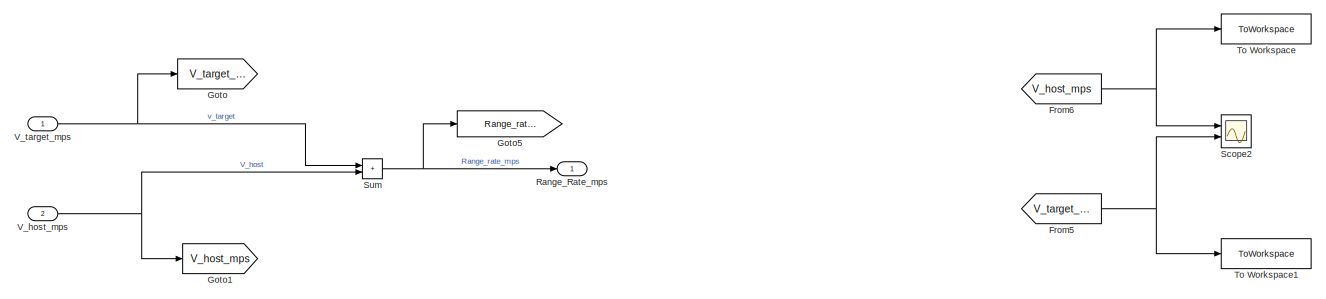
[diagram: Sensor inputs/Radar sensor output - part 1/3, full width, top band]
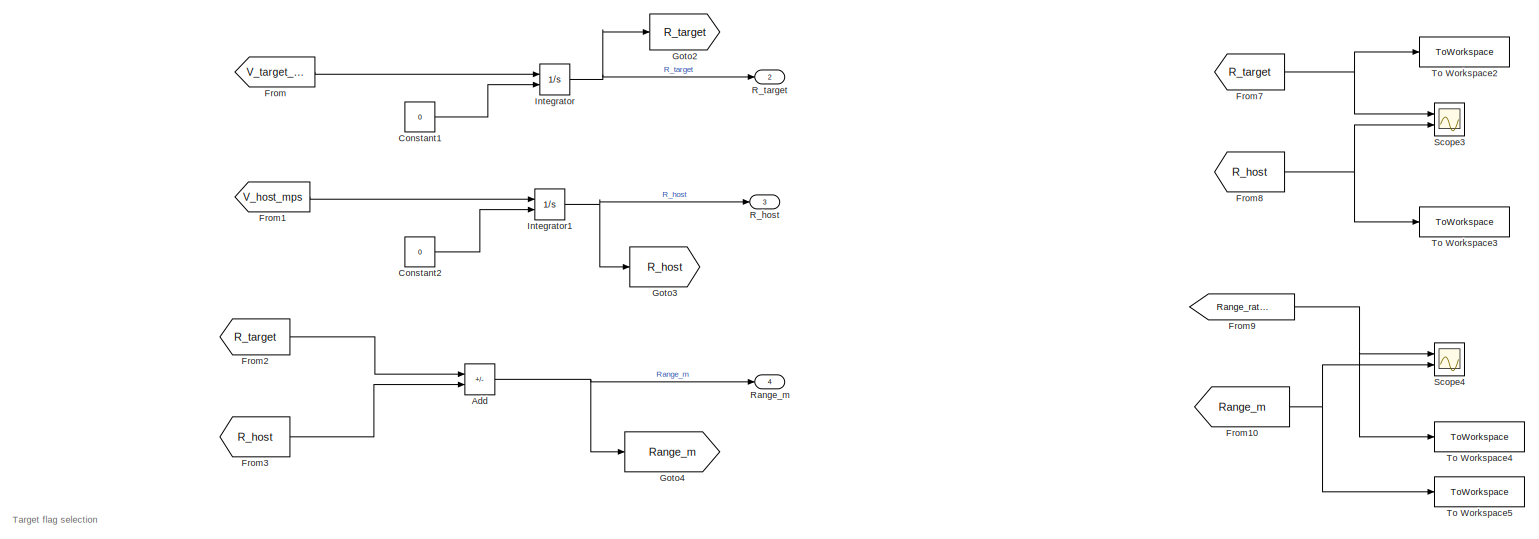
[diagram: Sensor inputs/Radar sensor output - part 2/3, full width, middle band]
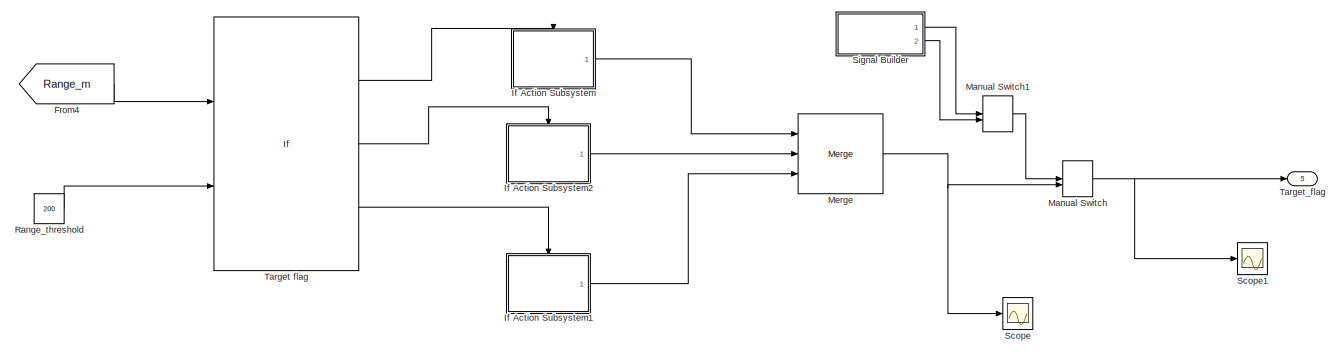
[diagram: Sensor inputs/Radar sensor output - part 3/3, full width, bottom band]
BLOCK [SubSystem] Sensor inputs/Radar sensor output
  Ports = [2, 5]
  RequestExecContextInheritance = off
BLOCK [Sum] Sensor inputs/Radar sensor output/Add
  IconShape = rectangular
  Inputs = +-
  Ports = [2, 1]
BLOCK [Constant] Sensor inputs/Radar sensor output/Constant1
  Value = 0
BLOCK [Constant] Sensor inputs/Radar sensor output/Constant2
  Value = 0
BLOCK [From] Sensor inputs/Radar sensor output/From
  GotoTag = V_target_mps
BLOCK [From] Sensor inputs/Radar sensor output/From1
  GotoTag = V_host_mps
BLOCK [From] Sensor inputs/Radar sensor output/From10
  GotoTag = Range_m
BLOCK [From] Sensor inputs/Radar sensor output/From2
  GotoTag = R_target
BLOCK [From] Sensor inputs/Radar sensor output/From3
  GotoTag = R_host
BLOCK [From] Sensor inputs/Radar sensor output/From4
  GotoTag = Range_m
BLOCK [From] Sensor inputs/Radar sensor output/From5
  GotoTag = V_target_mps
BLOCK [From] Sensor inputs/Radar sensor output/From6
  GotoTag = V_host_mps
BLOCK [From] Sensor inputs/Radar sensor output/From7
  GotoTag = R_target
BLOCK [From] Sensor inputs/Radar sensor output/From8
  GotoTag = R_host
BLOCK [From] Sensor inputs/Radar sensor output/From9
  GotoTag = Range_rate_mps
BLOCK [Goto] Sensor inputs/Radar sensor output/Goto
  GotoTag = V_target_mps
BLOCK [Goto] Sensor inputs/Radar sensor output/Goto1
  GotoTag = V_host_mps
BLOCK [Goto] Sensor inputs/Radar sensor output/Goto2
  GotoTag = R_target
BLOCK [Goto] Sensor inputs/Radar sensor output/Goto3
  GotoTag = R_host
BLOCK [Goto] Sensor inputs/Radar sensor output/Goto4
  GotoTag = Range_m
BLOCK [Goto] Sensor inputs/Radar sensor output/Goto5
  GotoTag = Range_rate_mps
BLOCK [SubSystem] Sensor inputs/Radar sensor output/If Action Subsystem
  Ports = [0, 1, 0, 0, 0, 0, 0, 1]
  RequestExecContextInheritance = off
  TreatAsAtomicUnit = on
BLOCK [ActionPort] Sensor inputs/Radar sensor output/If Action Subsystem/Action Port
  ActionPortLabel = if((u1>u2))
BLOCK [Constant] Sensor inputs/Radar sensor output/If Action Subsystem/Constant
  Value = 0
BLOCK [Outport] Sensor inputs/Radar sensor output/If Action Subsystem/Output
BLOCK [SubSystem] Sensor inputs/Radar sensor output/If Action Subsystem1
  Ports = [0, 1, 0, 0, 0, 0, 0, 1]
  RequestExecContextInheritance = off
  TreatAsAtomicUnit = on
BLOCK [ActionPort] Sensor inputs/Radar sensor output/If Action Subsystem1/Action Port
  ActionPortLabel = else
BLOCK [Constant] Sensor inputs/Radar sensor output/If Action Subsystem1/Constant
BLOCK [Outport] Sensor inputs/Radar sensor output/If Action Subsystem1/Output
BLOCK [SubSystem] Sensor inputs/Radar sensor output/If Action Subsystem2
  Ports = [0, 1, 0, 0, 0, 0, 0, 1]
  RequestExecContextInheritance = off
  TreatAsAtomicUnit = on
BLOCK [ActionPort] Sensor inputs/Radar sensor output/If Action Subsystem2/Action Port
  ActionPortLabel = elseif((u1<0))
BLOCK [Constant] Sensor inputs/Radar sensor output/If Action Subsystem2/Constant
  Value = 0
BLOCK [Outport] Sensor inputs/Radar sensor output/If Action Subsystem2/Output
BLOCK [Integrator] Sensor inputs/Radar sensor output/Integrator
  InitialCondition = 500
  InitialConditionSource = external
  Ports = [2, 1]
BLOCK [Integrator] Sensor inputs/Radar sensor output/Integrator1
  InitialConditionSource = external
  Ports = [2, 1]
BLOCK [ManualSwitch] Sensor inputs/Radar sensor output/Manual Switch
BLOCK [ManualSwitch] Sensor inputs/Radar sensor output/Manual Switch1
BLOCK [Merge] Sensor inputs/Radar sensor output/Merge
  Inputs = 3
  Ports = [3, 1]
BLOCK [Outport] Sensor inputs/Radar sensor output/R_host
  Port = 3
BLOCK [Outport] Sensor inputs/Radar sensor output/R_target
  Port = 2
BLOCK [Outport] Sensor inputs/Radar sensor output/Range_Rate_mps
BLOCK [Outport] Sensor inputs/Radar sensor output/Range_m
  Port = 4
BLOCK [Constant] Sensor inputs/Radar sensor output/Range_threshold
  Value = 200
BLOCK [Scope] Sensor inputs/Radar sensor output/Scope
  Floating = off
  NumInputPorts = 1
  Ports = [1]
  ScopeSpecificationString = Simulink.scopes.TimeScopeBlockCfg('CurrentConfiguration', extmgr.ConfigurationSet(extmgr.Configuration('Core','General UI',true),extmgr.Configuration('Core','Source UI',true),extmgr.Configuration('Sources','WiredSimulink',true),extmgr.Configuration('Visuals','Time Domain',true),extmgr.Configuration('Tools','Plot Navigation',true),extmgr.Configuration('Tools','Measurements',true)),'Version','2021a'...<+1ch>
BLOCK [Scope] Sensor inputs/Radar sensor output/Scope1
  Floating = off
  NumInputPorts = 1
  Ports = [1]
  ScopeSpecificationString = Simulink.scopes.TimeScopeBlockCfg('CurrentConfiguration', extmgr.ConfigurationSet(extmgr.Configuration('Core','General UI',true),extmgr.Configuration('Core','Source UI',true),extmgr.Configuration('Sources','WiredSimulink',true,'DataLoggingVariableName','ScopeData1'),extmgr.Configuration('Visuals','Time Domain',true),extmgr.Configuration('Tools','Plot Navigation',true),extmgr.Configuration('Tools',...<+40ch>
BLOCK [Scope] Sensor inputs/Radar sensor output/Scope2
  Floating = off
  NumInputPorts = 2
  Ports = [2]
  ScopeSpecificationString = Simulink.scopes.TimeScopeBlockCfg('CurrentConfiguration', extmgr.ConfigurationSet(extmgr.Configuration('Core','General UI',true),extmgr.Configuration('Core','Source UI',true),extmgr.Configuration('Sources','WiredSimulink',true,'DataLoggingVariableName','ScopeData2'),extmgr.Configuration('Visuals','Time Domain',true),extmgr.Configuration('Tools','Plot Navigation',true),extmgr.Configuration('Tools',...<+58ch>
BLOCK [Scope] Sensor inputs/Radar sensor output/Scope3
  Floating = off
  NumInputPorts = 2
  Ports = [2]
  ScopeSpecificationString = Simulink.scopes.TimeScopeBlockCfg('CurrentConfiguration', extmgr.ConfigurationSet(extmgr.Configuration('Core','General UI',true),extmgr.Configuration('Core','Source UI',true),extmgr.Configuration('Sources','WiredSimulink',true,'DataLoggingVariableName','ScopeData3'),extmgr.Configuration('Visuals','Time Domain',true),extmgr.Configuration('Tools','Plot Navigation',true),extmgr.Configuration('Tools',...<+58ch>
BLOCK [Scope] Sensor inputs/Radar sensor output/Scope4
  Floating = off
  NumInputPorts = 2
  Ports = [2]
  ScopeSpecificationString = Simulink.scopes.TimeScopeBlockCfg('CurrentConfiguration', extmgr.ConfigurationSet(extmgr.Configuration('Core','General UI',true),extmgr.Configuration('Core','Source UI',true),extmgr.Configuration('Sources','WiredSimulink',true,'DataLoggingVariableName','ScopeData4'),extmgr.Configuration('Visuals','Time Domain',true),extmgr.Configuration('Tools','Plot Navigation',true),extmgr.Configuration('Tools',...<+58ch>
BLOCK [SubSystem] Sensor inputs/Radar sensor output/Signal Builder
  ClipboardFcn = sigbuilder_block('clipboard');
  CloseFcn = sigbuilder_block('close');
  ContinueFcn = sigbuilder_block('continue');
  CopyFcn = sigbuilder_block('copy');
  DeleteFcn = sigbuilder_block('delete');
  LoadFcn = sigbuilder_block('load');
  MaskHideContents = on
  ModelCloseFcn = sigbuilder_block('modelClose');
  NameChangeFcn = sigbuilder_block('namechange');
  OpenFcn = sigbuilder_block('open',[234.75 201.75 550.5 359.25 ]);
  PauseFcn = sigbuilder_block('pause');
  Ports = [0, 2]
  PreSaveFcn = sigbuilder_block('preSave');
  RequestExecContextInheritance = off
  StartFcn = sigbuilder_block('start');
  StopFcn = sigbuilder_block('stop');
  Tag = STV Subsys
BLOCK [Demux] Sensor inputs/Radar sensor output/Signal Builder/Demux
  DisplayOption = none
  Outputs = 2
  Ports = [1, 2]
  Tag = STV Demux
BLOCK [FromWorkspace] Sensor inputs/Radar sensor output/Signal Builder/FromWs
  Tag = STV FromWs
  VariableName = tuvar
BLOCK [Outport] Sensor inputs/Radar sensor output/Signal Builder/no target
  Port = 2
  Tag = STV Outport
BLOCK [Outport] Sensor inputs/Radar sensor output/Signal Builder/target
  Tag = STV Outport
BLOCK [Sum] Sensor inputs/Radar sensor output/Sum
  IconShape = rectangular
  Ports = [2, 1]
BLOCK [If] Sensor inputs/Radar sensor output/Target flag 
  ElseIfExpressions = (u1<0)
  IfExpression = (u1>u2)
  NumInputs = 2
  Ports = [2, 3]
BLOCK [Outport] Sensor inputs/Radar sensor output/Target_flag
  Port = 5
BLOCK [ToWorkspace] Sensor inputs/Radar sensor output/To Workspace
  FixptAsFi = on
  MaxDataPoints = inf
  Ports = [1]
  SampleTime = -1
  SaveFormat = Timeseries
  VariableName = V_host
BLOCK [ToWorkspace] Sensor inputs/Radar sensor output/To Workspace1
  FixptAsFi = on
  MaxDataPoints = inf
  Ports = [1]
  SampleTime = -1
  SaveFormat = Timeseries
  VariableName = V_target
BLOCK [ToWorkspace] Sensor inputs/Radar sensor output/To Workspace2
  FixptAsFi = on
  MaxDataPoints = inf
  Ports = [1]
  SampleTime = -1
  SaveFormat = Timeseries
  VariableName = Target_x
BLOCK [ToWorkspace] Sensor inputs/Radar sensor output/To Workspace3
  FixptAsFi = on
  MaxDataPoints = inf
  Ports = [1]
  SampleTime = -1
  SaveFormat = Timeseries
  VariableName = Host_x
BLOCK [ToWorkspace] Sensor inputs/Radar sensor output/To Workspace4
  FixptAsFi = on
  MaxDataPoints = inf
  Ports = [1]
  SampleTime = -1
  SaveFormat = Timeseries
  VariableName = Range_rate
BLOCK [ToWorkspace] Sensor inputs/Radar sensor output/To Workspace5
  FixptAsFi = on
  MaxDataPoints = inf
  Ports = [1]
  SampleTime = -1
  SaveFormat = Timeseries
  VariableName = Range
BLOCK [Inport] Sensor inputs/Radar sensor output/V_host_mps
  Port = 2
BLOCK [Inport] Sensor inputs/Radar sensor output/V_target_mps
BLOCK [Outport] Sensor inputs/Range rate mps
  Port = 4
BLOCK [Outport] Sensor inputs/Range_m
  Port = 7
BLOCK [Outport] Sensor inputs/Relative yaw angle
  Port = 3
BLOCK [Scope] Sensor inputs/Scope
  Floating = off
  NumInputPorts = 5
  Ports = [5]
  ScopeSpecificationString = Simulink.scopes.TimeScopeBlockCfg('CurrentConfiguration', extmgr.ConfigurationSet(extmgr.Configuration('Core','General UI',true),extmgr.Configuration('Core','Source UI',true),extmgr.Configuration('Sources','WiredSimulink',true,'DataLoggingVariableName','ScopeData5'),extmgr.Configuration('Visuals','Time Domain',true),extmgr.Configuration('Tools','Plot Navigation',true),extmgr.Configuration('Tools',...<+40ch>
BLOCK [Outport] Sensor inputs/Target flag
  Port = 8
BLOCK [Inport] Sensor inputs/V_host
  Port = 2
BLOCK [Inport] Sensor inputs/V_target
BLOCK [Outport] Sensor inputs/driver_attention
  Port = 9
BLOCK [Inport] Sensor inputs/driver_state_monitor
  Port = 5
BLOCK [Inport] Sensor inputs/driver_steering_handson
  Port = 7
BLOCK [Outport] Sensor inputs/seq curvature
BLOCK [Inport] Sensor inputs/yaw_rate_mps
  Port = 4
BLOCK [CircularGaugeBlock] V_host
BLOCK [Outport] en_manual
  Port = 2
ANNOTATION (root): HA mode manager:1
ANNOTATION (root): HA mode manager:2
ANNOTATION (root): V Host
ANNOTATION (root): Highway Assist
ANNOTATION Controller/ACC Longitudinal control/Headway Control Subsystem: Headway Control Logic
ANNOTATION Controller/ACC Longitudinal control/Headway Control Subsystem: Dsafe(Commanded range calculation)
ANNOTATION Controller/MPC Lateral control/MPC: LATERAL CONTROL WITH MPC
ANNOTATION HA mode manager/Fault manager: if driver_attention = 1, then output 1
ANNOTATION HA mode manager/Fault manager: if lane confidence = 1, then output 1
ANNOTATION HA mode manager/Fault manager: Checks that LCA is enabled from the driver
ANNOTATION HA mode manager/Fault manager: Checks the turn signal. if turn signal request = 1, then output 0
ANNOTATION HA mode manager/Fault manager: HA Available = 1, go for feature HA Available = 0, feature not available display HMI
ANNOTATION HA mode manager/Fault manager: Logic 1:checks if vehicle speed is above 35kph i.e 9mps
ANNOTATION HA mode manager/Fault manager: Logic 2:checks if sensor signal is faulty then 0(deactivate), otherwise 1 (activate)
ANNOTATION Input layer: ACC Input signals
ANNOTATION Input layer: LCA Input signals
ANNOTATION PLANT/Lateral Vehicle Dynamics: Vehicle Dynamics
ANNOTATION PLANT/Lateral Vehicle Dynamics: Vehicle Model
ANNOTATION Sensor inputs: Sensor Output
ANNOTATION Sensor inputs: driver_state_monitor = DSMC
ANNOTATION Sensor inputs: IF hands_on flag == 1 consider both DSMC and steering
ANNOTATION Sensor inputs/Lateral control sensor inputs: Lateral Dynamics For MPC
ANNOTATION Sensor inputs/Lateral control sensor inputs/sensor dynamics: The lateral deviation is the cross track error
ANNOTATION Sensor inputs/Radar sensor output: Target flag selection
LINE Constant1:1 -> HA mode manager:9
LINE Constant2:1 -> PLANT:2
LINE Constant3:1 -> Controller:4
LINE Constant4:1 -> Controller:8
LINE Constant:1 -> Sensor inputs:5
LINE Controller/ACC Longitudinal control/ACC State Logic/ACC State flow:1 -> Controller/ACC Longitudinal control/ACC State Logic/en_man:1
LINE Controller/ACC Longitudinal control/ACC State Logic/ACC State flow:2 -> Controller/ACC Longitudinal control/ACC State Logic/en_vel:1
LINE Controller/ACC Longitudinal control/ACC State Logic/ACC State flow:3 -> Controller/ACC Longitudinal control/ACC State Logic/en_pos:1
LINE Controller/ACC Longitudinal control/ACC State Logic/ACC_enabled:1 -> Controller/ACC Longitudinal control/ACC State Logic/ACC State flow:1
LINE Controller/ACC Longitudinal control/ACC State Logic/From1:1 -> Controller/ACC Longitudinal control/ACC State Logic/v_host_mps:1
LINE Controller/ACC Longitudinal control/ACC State Logic/From:1 -> Controller/ACC Longitudinal control/ACC State Logic/v_command_mps:1
LINE Controller/ACC Longitudinal control/ACC State Logic/Range_m:1 -> Controller/ACC Longitudinal control/ACC State Logic/range_m:1
LINE Controller/ACC Longitudinal control/ACC State Logic/Target_flag:1 -> Controller/ACC Longitudinal control/ACC State Logic/ACC State flow:3
LINE Controller/ACC Longitudinal control/ACC State Logic/Time_gap_sec:1 -> Controller/ACC Longitudinal control/ACC State Logic/time_gap_sec:1
NET Controller/ACC Longitudinal control/ACC State Logic/V_command_mps:1 -> Controller/ACC Longitudinal control/ACC State Logic/ACC State flow:4, Controller/ACC Longitudinal control/ACC State Logic/Goto:1
NET Controller/ACC Longitudinal control/ACC State Logic/V_host_mps:1 -> Controller/ACC Longitudinal control/ACC State Logic/ACC State flow:2, Controller/ACC Longitudinal control/ACC State Logic/Goto1:1
LINE Controller/ACC Longitudinal control/ACC State Logic/V_target_mps:1 -> Controller/ACC Longitudinal control/ACC State Logic/v_target_mps:1
LINE Controller/ACC Longitudinal control/ACC State Logic:1 -> Controller/ACC Longitudinal control/Goto:1
LINE Controller/ACC Longitudinal control/ACC State Logic:2 -> Controller/ACC Longitudinal control/Goto1:1
LINE Controller/ACC Longitudinal control/ACC State Logic:3 -> Controller/ACC Longitudinal control/Goto2:1
LINE Controller/ACC Longitudinal control/ACC State Logic:4 -> Controller/ACC Longitudinal control/Goto3:1
LINE Controller/ACC Longitudinal control/ACC State Logic:5 -> Controller/ACC Longitudinal control/Goto4:1
LINE Controller/ACC Longitudinal control/ACC State Logic:6 -> Controller/ACC Longitudinal control/Goto5:1
LINE Controller/ACC Longitudinal control/ACC State Logic:7 -> Controller/ACC Longitudinal control/Goto6:1
LINE Controller/ACC Longitudinal control/ACC State Logic:8 -> Controller/ACC Longitudinal control/Goto7:1
LINE Controller/ACC Longitudinal control/ACC_enabled:1 -> Controller/ACC Longitudinal control/ACC State Logic:1
LINE Controller/ACC Longitudinal control/Add:1 -> Controller/ACC Longitudinal control/Fd_u:1
LINE Controller/ACC Longitudinal control/Feedforward_Logic/2-D Lookup Table:1 -> Controller/ACC Longitudinal control/Feedforward_Logic/Add1:2
LINE Controller/ACC Longitudinal control/Feedforward_Logic/Add1:1 -> Controller/ACC Longitudinal control/Feedforward_Logic/acc_theo:1
LINE Controller/ACC Longitudinal control/Feedforward_Logic/Add:1 -> Controller/ACC Longitudinal control/Feedforward_Logic/Divide:1
LINE Controller/ACC Longitudinal control/Feedforward_Logic/Divide:1 -> Controller/ACC Longitudinal control/Feedforward_Logic/Add1:1
LINE Controller/ACC Longitudinal control/Feedforward_Logic/From1:1 -> Controller/ACC Longitudinal control/Feedforward_Logic/Quadrant Chart:3
LINE Controller/ACC Longitudinal control/Feedforward_Logic/From2:1 -> Controller/ACC Longitudinal control/Feedforward_Logic/2-D Lookup Table:1
LINE Controller/ACC Longitudinal control/Feedforward_Logic/From3:1 -> Controller/ACC Longitudinal control/Feedforward_Logic/2-D Lookup Table:2
LINE Controller/ACC Longitudinal control/Feedforward_Logic/From:1 -> Controller/ACC Longitudinal control/Feedforward_Logic/Quadrant Chart:4
LINE Controller/ACC Longitudinal control/Feedforward_Logic/Gain:1 -> Controller/ACC Longitudinal control/Feedforward_Logic/Divide:2
LINE Controller/ACC Longitudinal control/Feedforward_Logic/If Action Subsystem/Constant:1 -> Controller/ACC Longitudinal control/Feedforward_Logic/If Action Subsystem/Out1:1
LINE Controller/ACC Longitudinal control/Feedforward_Logic/If Action Subsystem1/Constant:1 -> Controller/ACC Longitudinal control/Feedforward_Logic/If Action Subsystem1/Out1:1
LINE Controller/ACC Longitudinal control/Feedforward_Logic/If Action Subsystem1:1 -> Controller/ACC Longitudinal control/Feedforward_Logic/Merge:2
LINE Controller/ACC Longitudinal control/Feedforward_Logic/If Action Subsystem2/Constant:1 -> Controller/ACC Longitudinal control/Feedforward_Logic/If Action Subsystem2/Out1:1
LINE Controller/ACC Longitudinal control/Feedforward_Logic/If Action Subsystem2:1 -> Controller/ACC Longitudinal control/Feedforward_Logic/Merge:3
LINE Controller/ACC Longitudinal control/Feedforward_Logic/If Action Subsystem:1 -> Controller/ACC Longitudinal control/Feedforward_Logic/Merge:1
LINE Controller/ACC Longitudinal control/Feedforward_Logic/If:1 -> Controller/ACC Longitudinal control/Feedforward_Logic/If Action Subsystem:ifaction
LINE Controller/ACC Longitudinal control/Feedforward_Logic/If:2 -> Controller/ACC Longitudinal control/Feedforward_Logic/If Action Subsystem1:ifaction
LINE Controller/ACC Longitudinal control/Feedforward_Logic/If:3 -> Controller/ACC Longitudinal control/Feedforward_Logic/If Action Subsystem2:ifaction
LINE Controller/ACC Longitudinal control/Feedforward_Logic/Merge:1 -> Controller/ACC Longitudinal control/Feedforward_Logic/Goto3:1
NET Controller/ACC Longitudinal control/Feedforward_Logic/Product:1 -> Controller/ACC Longitudinal control/Feedforward_Logic/Gain:1, Controller/ACC Longitudinal control/Feedforward_Logic/Quadrant Chart:1
LINE Controller/ACC Longitudinal control/Feedforward_Logic/Quadrant Chart:1 -> Controller/ACC Longitudinal control/Feedforward_Logic/Goto2:1
LINE Controller/ACC Longitudinal control/Feedforward_Logic/Range_m:1 -> Controller/ACC Longitudinal control/Feedforward_Logic/Quadrant Chart:2
LINE Controller/ACC Longitudinal control/Feedforward_Logic/Range_rate:1 -> Controller/ACC Longitudinal control/Feedforward_Logic/If:1
LINE Controller/ACC Longitudinal control/Feedforward_Logic/Square1:1 -> Controller/ACC Longitudinal control/Feedforward_Logic/Add:2
LINE Controller/ACC Longitudinal control/Feedforward_Logic/Square:1 -> Controller/ACC Longitudinal control/Feedforward_Logic/Add:1
LINE Controller/ACC Longitudinal control/Feedforward_Logic/Time_gap_sec:1 -> Controller/ACC Longitudinal control/Feedforward_Logic/Product:2
NET Controller/ACC Longitudinal control/Feedforward_Logic/V_host_mps:1 -> Controller/ACC Longitudinal control/Feedforward_Logic/Goto:1, Controller/ACC Longitudinal control/Feedforward_Logic/Product:1, Controller/ACC Longitudinal control/Feedforward_Logic/Square1:1
NET Controller/ACC Longitudinal control/Feedforward_Logic/V_target_mps:1 -> Controller/ACC Longitudinal control/Feedforward_Logic/Goto1:1, Controller/ACC Longitudinal control/Feedforward_Logic/Square:1
LINE Controller/ACC Longitudinal control/Feedforward_Logic:1 -> Controller/ACC Longitudinal control/Add:1
LINE Controller/ACC Longitudinal control/From10:1 -> Controller/ACC Longitudinal control/Scope:1
LINE Controller/ACC Longitudinal control/From11:1 -> Controller/ACC Longitudinal control/Scope:3
LINE Controller/ACC Longitudinal control/From12:1 -> Controller/ACC Longitudinal control/Feedforward_Logic:4
LINE Controller/ACC Longitudinal control/From13:1 -> Controller/ACC Longitudinal control/Feedforward_Logic:3
LINE Controller/ACC Longitudinal control/From14:1 -> Controller/ACC Longitudinal control/Feedforward_Logic:2
LINE Controller/ACC Longitudinal control/From15:1 -> Controller/ACC Longitudinal control/Feedforward_Logic:1
LINE Controller/ACC Longitudinal control/From16:1 -> Controller/ACC Longitudinal control/Feedforward_Logic:5
LINE Controller/ACC Longitudinal control/From1:1 -> Controller/ACC Longitudinal control/Headway Control Subsystem:2
LINE Controller/ACC Longitudinal control/From2:1 -> Controller/ACC Longitudinal control/Headway Control Subsystem:3
LINE Controller/ACC Longitudinal control/From3:1 -> Controller/ACC Longitudinal control/Headway Control Subsystem:enable
LINE Controller/ACC Longitudinal control/From4:1 -> Controller/ACC Longitudinal control/Velocity Control Subsystem:1
LINE Controller/ACC Longitudinal control/From5:1 -> Controller/ACC Longitudinal control/Headway Control Subsystem:1
LINE Controller/ACC Longitudinal control/From6:1 -> Controller/ACC Longitudinal control/Velocity Control Subsystem:enable
LINE Controller/ACC Longitudinal control/From7:1 -> Controller/ACC Longitudinal control/Manual Mode Subsystem:enable
LINE Controller/ACC Longitudinal control/From8:1 -> Controller/ACC Longitudinal control/Scope:2
LINE Controller/ACC Longitudinal control/From9:1 -> Controller/ACC Longitudinal control/Manual Mode Subsystem:1
LINE Controller/ACC Longitudinal control/From:1 -> Controller/ACC Longitudinal control/Velocity Control Subsystem:2
LINE Controller/ACC Longitudinal control/Headway Control Subsystem/From1:1 -> Controller/ACC Longitudinal control/Headway Control Subsystem/Scope:2
LINE Controller/ACC Longitudinal control/Headway Control Subsystem/From2:1 -> Controller/ACC Longitudinal control/Headway Control Subsystem/Scope:1
LINE Controller/ACC Longitudinal control/Headway Control Subsystem/From3:1 -> Controller/ACC Longitudinal control/Headway Control Subsystem/To Workspace:1
LINE Controller/ACC Longitudinal control/Headway Control Subsystem/From4:1 -> Controller/ACC Longitudinal control/Headway Control Subsystem/To Workspace1:1
LINE Controller/ACC Longitudinal control/Headway Control Subsystem/From5:1 -> Controller/ACC Longitudinal control/Headway Control Subsystem/To Workspace2:1
LINE Controller/ACC Longitudinal control/Headway Control Subsystem/From:1 -> Controller/ACC Longitudinal control/Headway Control Subsystem/Scope:3
LINE Controller/ACC Longitudinal control/Headway Control Subsystem/PID Controller:1 -> Controller/ACC Longitudinal control/Headway Control Subsystem/Fd:1
LINE Controller/ACC Longitudinal control/Headway Control Subsystem/Product:1 -> Controller/ACC Longitudinal control/Headway Control Subsystem/Sum:1
NET Controller/ACC Longitudinal control/Headway Control Subsystem/Range_m:1 -> Controller/ACC Longitudinal control/Headway Control Subsystem/Goto2:1, Controller/ACC Longitudinal control/Headway Control Subsystem/Sum1:2
LINE Controller/ACC Longitudinal control/Headway Control Subsystem/Stopping_distance_meters:1 -> Controller/ACC Longitudinal control/Headway Control Subsystem/Sum:2
NET Controller/ACC Longitudinal control/Headway Control Subsystem/Sum1:1 -> Controller/ACC Longitudinal control/Headway Control Subsystem/Goto1:1, Controller/ACC Longitudinal control/Headway Control Subsystem/PID Controller:1
NET Controller/ACC Longitudinal control/Headway Control Subsystem/Sum:1 -> Controller/ACC Longitudinal control/Headway Control Subsystem/Goto:1, Controller/ACC Longitudinal control/Headway Control Subsystem/Sum1:1
LINE Controller/ACC Longitudinal control/Headway Control Subsystem/Time_gap_sec:1 -> Controller/ACC Longitudinal control/Headway Control Subsystem/Product:2
LINE Controller/ACC Longitudinal control/Headway Control Subsystem/V_host_mps:1 -> Controller/ACC Longitudinal control/Headway Control Subsystem/Product:1
LINE Controller/ACC Longitudinal control/Headway Control Subsystem:1 -> Controller/ACC Longitudinal control/Merge:1
LINE Controller/ACC Longitudinal control/Manual Mode Subsystem/Fd_throttle:1 -> Controller/ACC Longitudinal control/Manual Mode Subsystem/Fd:1
LINE Controller/ACC Longitudinal control/Manual Mode Subsystem:1 -> Controller/ACC Longitudinal control/Merge:3
NET Controller/ACC Longitudinal control/Merge:1 -> Controller/ACC Longitudinal control/Add:2, Controller/ACC Longitudinal control/Display:1
LINE Controller/ACC Longitudinal control/Range_m:1 -> Controller/ACC Longitudinal control/ACC State Logic:5
LINE Controller/ACC Longitudinal control/Range_rate:1 -> Controller/ACC Longitudinal control/Goto9:1
LINE Controller/ACC Longitudinal control/Target_flag:1 -> Controller/ACC Longitudinal control/ACC State Logic:7
LINE Controller/ACC Longitudinal control/Throttle_input:1 -> Controller/ACC Longitudinal control/Goto8:1
LINE Controller/ACC Longitudinal control/Time_gap_sec:1 -> Controller/ACC Longitudinal control/ACC State Logic:4
LINE Controller/ACC Longitudinal control/V_command_mps:1 -> Controller/ACC Longitudinal control/ACC State Logic:2
LINE Controller/ACC Longitudinal control/V_host_mps:1 -> Controller/ACC Longitudinal control/ACC State Logic:3
LINE Controller/ACC Longitudinal control/V_target_mps:1 -> Controller/ACC Longitudinal control/ACC State Logic:6
LINE Controller/ACC Longitudinal control/Velocity Control Subsystem/PID Controller:1 -> Controller/ACC Longitudinal control/Velocity Control Subsystem/Fd:1
LINE Controller/ACC Longitudinal control/Velocity Control Subsystem/Sum:1 -> Controller/ACC Longitudinal control/Velocity Control Subsystem/PID Controller:1
NET Controller/ACC Longitudinal control/Velocity Control Subsystem/V_command_mps:1 -> Controller/ACC Longitudinal control/Velocity Control Subsystem/Scope:1, Controller/ACC Longitudinal control/Velocity Control Subsystem/Sum:1
NET Controller/ACC Longitudinal control/Velocity Control Subsystem/V_host_mps:1 -> Controller/ACC Longitudinal control/Velocity Control Subsystem/Scope:2, Controller/ACC Longitudinal control/Velocity Control Subsystem/Sum:2
LINE Controller/ACC Longitudinal control/Velocity Control Subsystem:1 -> Controller/ACC Longitudinal control/Merge:2
LINE Controller/ACC Longitudinal control:1 -> Controller/Fd_u:1
LINE Controller/ACC_enabled:1 -> Controller/ACC Longitudinal control:1
LINE Controller/HA_active:1 -> Controller/MPC Lateral control:1
LINE Controller/Lateral_deviation:1 -> Controller/MPC Lateral control:4
LINE Controller/MPC Lateral control/HA_active:1 -> Controller/MPC Lateral control/MPC:enable
LINE Controller/MPC Lateral control/Lateral_deviation:1 -> Controller/MPC Lateral control/MPC:3
NET Controller/MPC Lateral control/MPC/Lane Keeping Assist System:1 -> Controller/MPC Lateral control/MPC/Scope:1, Controller/MPC Lateral control/MPC/steering angle (rad):1
NET Controller/MPC Lateral control/MPC/Relative_yaw_angle:1 -> Controller/MPC Lateral control/MPC/Lane Keeping Assist System:4, Controller/MPC Lateral control/MPC/Scope1:3, Controller/MPC Lateral control/MPC/To Workspace1:1
NET Controller/MPC Lateral control/MPC/V_host_mps:1 -> Controller/MPC Lateral control/MPC/Lane Keeping Assist System:2, Controller/MPC Lateral control/MPC/Scope1:1
NET Controller/MPC Lateral control/MPC/lateral_deviation:1 -> Controller/MPC Lateral control/MPC/Lane Keeping Assist System:3, Controller/MPC Lateral control/MPC/Scope1:2, Controller/MPC Lateral control/MPC/To Workspace:1
LINE Controller/MPC Lateral control/MPC/seq_curvature:1 -> Controller/MPC Lateral control/MPC/Lane Keeping Assist System:1
LINE Controller/MPC Lateral control/MPC:1 -> Controller/MPC Lateral control/Merge:1
LINE Controller/MPC Lateral control/Merge:1 -> Controller/MPC Lateral control/steering_delta:1
LINE Controller/MPC Lateral control/Relative_yaw_angle:1 -> Controller/MPC Lateral control/MPC:4
LINE Controller/MPC Lateral control/V_host_mps:1 -> Controller/MPC Lateral control/MPC:2
LINE Controller/MPC Lateral control/enable_manual:1 -> Controller/MPC Lateral control/manual:enable
LINE Controller/MPC Lateral control/manual/Constant:1 -> Controller/MPC Lateral control/manual/delta:1
LINE Controller/MPC Lateral control/manual:1 -> Controller/MPC Lateral control/Merge:2
LINE Controller/MPC Lateral control/seq_curvature:1 -> Controller/MPC Lateral control/MPC:1
LINE Controller/MPC Lateral control:1 -> Controller/steering-delta:1
LINE Controller/Range_m:1 -> Controller/ACC Longitudinal control:5
LINE Controller/Range_rate:1 -> Controller/ACC Longitudinal control:9
LINE Controller/Relative_yaw_angle:1 -> Controller/MPC Lateral control:5
LINE Controller/Target_flag:1 -> Controller/ACC Longitudinal control:7
LINE Controller/Throttle_input:1 -> Controller/ACC Longitudinal control:8
LINE Controller/Time_gap_sec:1 -> Controller/ACC Longitudinal control:4
LINE Controller/V_command_mps:1 -> Controller/ACC Longitudinal control:2
NET Controller/V_host_mps:1 -> Controller/ACC Longitudinal control:3, Controller/MPC Lateral control:2
LINE Controller/V_target_mps:1 -> Controller/ACC Longitudinal control:6
LINE Controller/enable_manual:1 -> Controller/MPC Lateral control:3
LINE Controller/seq_curvature:1 -> Controller/MPC Lateral control:6
LINE Controller:1 -> PLANT:1
LINE Controller:2 -> PLANT:3
LINE From10:1 -> HA mode manager:7
LINE From11:1 -> HA mode manager:6
LINE From12:1 -> HA mode manager:8
LINE From13:1 -> Sensor inputs:6
LINE From14:1 -> Controller:1
LINE From15:1 -> Controller:2
LINE From16:1 -> Controller:3
LINE From17:1 -> Controller:10
LINE From18:1 -> Controller:14
LINE From19:1 -> Controller:12
LINE From1:1 -> Sensor inputs:2
LINE From20:1 -> Controller:13
LINE From21:1 -> Controller:7
LINE From22:1 -> Controller:9
LINE From23:1 -> Controller:11
LINE From24:1 -> Controller:5
LINE From25:1 -> Controller:6
LINE From2:1 -> Sensor inputs:3
LINE From3:1 -> Sensor inputs:4
LINE From4:1 -> Sensor inputs:7
LINE From5:1 -> HA mode manager:1
LINE From6:1 -> HA mode manager:5
LINE From7:1 -> HA mode manager:2
LINE From8:1 -> HA mode manager:3
LINE From9:1 -> HA mode manager:4
LINE From:1 -> Sensor inputs:1
LINE HA mode manager/Acc_enable:1 -> HA mode manager/HA Mode manager:1
LINE HA mode manager/Fault manager/	HA_enable_request:1 -> HA mode manager/Fault manager/Switch2:2
LINE HA mode manager/Fault manager/	driver_attention:1 -> HA mode manager/Fault manager/Switch4:2
LINE HA mode manager/Fault manager/	lane_confidence:1 -> HA mode manager/Fault manager/Switch5:2
LINE HA mode manager/Fault manager/	turn_signal_request:1 -> HA mode manager/Fault manager/Switch3:2
NET HA mode manager/Fault manager/AND:1 -> HA mode manager/Fault manager/HA_available:1, HA mode manager/Fault manager/Scope:1
LINE HA mode manager/Fault manager/Constant10:1 -> HA mode manager/Fault manager/Switch5:1
LINE HA mode manager/Fault manager/Constant11:1 -> HA mode manager/Fault manager/Switch5:3
LINE HA mode manager/Fault manager/Constant1:1 -> HA mode manager/Fault manager/Switch:3
LINE HA mode manager/Fault manager/Constant2:1 -> HA mode manager/Fault manager/Switch1:1
LINE HA mode manager/Fault manager/Constant3:1 -> HA mode manager/Fault manager/Switch1:3
LINE HA mode manager/Fault manager/Constant4:1 -> HA mode manager/Fault manager/Switch2:1
LINE HA mode manager/Fault manager/Constant5:1 -> HA mode manager/Fault manager/Switch2:3
LINE HA mode manager/Fault manager/Constant6:1 -> HA mode manager/Fault manager/Switch3:1
LINE HA mode manager/Fault manager/Constant7:1 -> HA mode manager/Fault manager/Switch3:3
LINE HA mode manager/Fault manager/Constant8:1 -> HA mode manager/Fault manager/Switch4:1
LINE HA mode manager/Fault manager/Constant9:1 -> HA mode manager/Fault manager/Switch4:3
LINE HA mode manager/Fault manager/Constant:1 -> HA mode manager/Fault manager/Switch:1
LINE HA mode manager/Fault manager/Switch1:1 -> HA mode manager/Fault manager/AND:2
LINE HA mode manager/Fault manager/Switch2:1 -> HA mode manager/Fault manager/AND:3
NET HA mode manager/Fault manager/Switch3:1 -> HA mode manager/Fault manager/AND:4, HA mode manager/Fault manager/AND:5
LINE HA mode manager/Fault manager/Switch4:1 -> HA mode manager/Fault manager/AND:6
LINE HA mode manager/Fault manager/Switch5:1 -> HA mode manager/Fault manager/AND:7
LINE HA mode manager/Fault manager/Switch:1 -> HA mode manager/Fault manager/AND:1
LINE HA mode manager/Fault manager/sensor_hardware_status:1 -> HA mode manager/Fault manager/Switch1:2
LINE HA mode manager/Fault manager/vehicle_speed_mps:1 -> HA mode manager/Fault manager/Switch:2
NET HA mode manager/Fault manager:1 -> HA mode manager/Goto:1, HA mode manager/Scope:1
LINE HA mode manager/From:1 -> HA mode manager/HA Mode manager:2
LINE HA mode manager/HA Mode manager/ACC_enable:1 -> HA mode manager/HA Mode manager/Chart:1
LINE HA mode manager/HA Mode manager/Chart:1 -> HA mode manager/HA Mode manager/HA_active:1
LINE HA mode manager/HA Mode manager/Chart:2 -> HA mode manager/HA Mode manager/en_manual:1
LINE HA mode manager/HA Mode manager/Chart:3 -> HA mode manager/HA Mode manager/Hands_on:1
LINE HA mode manager/HA Mode manager/HA_available:1 -> HA mode manager/HA Mode manager/Chart:2
LINE HA mode manager/HA Mode manager/Hands_off_zone:1 -> HA mode manager/HA Mode manager/Chart:3
LINE HA mode manager/HA Mode manager/LCA_enable:1 -> HA mode manager/HA Mode manager/Chart:4
LINE HA mode manager/HA Mode manager:1 -> HA mode manager/HA_active:1
LINE HA mode manager/HA Mode manager:2 -> HA mode manager/en_manual:1
LINE HA mode manager/HA Mode manager:3 -> HA mode manager/Hands_on:1
LINE HA mode manager/HA_enable_request:1 -> HA mode manager/Fault manager:3
LINE HA mode manager/Hands_off_zone:1 -> HA mode manager/HA Mode manager:3
LINE HA mode manager/LCA_enable:1 -> HA mode manager/HA Mode manager:4
LINE HA mode manager/driver_attention:1 -> HA mode manager/Fault manager:5
LINE HA mode manager/lane_confidence:1 -> HA mode manager/Fault manager:6
LINE HA mode manager/sensor_hardware_status:1 -> HA mode manager/Fault manager:2
LINE HA mode manager/turn_signal_request:1 -> HA mode manager/Fault manager:4
LINE HA mode manager/vehicle_speed_mps:1 -> HA mode manager/Fault manager:1
NET HA mode manager:1 -> Goto22:1, HA_active:1
NET HA mode manager:2 -> Goto23:1, en_manual:1
NET HA mode manager:3 -> Goto24:1, Hands_on:1
LINE Input layer/ACC_enable:1 -> Input layer/ACC_enable_req:1
LINE Input layer/Brake_enable:1 -> Input layer/Brk_enable_req:1
LINE Input layer/EH_zones:1 -> Input layer/Manual Switch1:1
LINE Input layer/EH_zones:2 -> Input layer/Manual Switch1:2
LINE Input layer/Fd_throttle:1 -> Input layer/manual_throttle:1
LINE Input layer/HA enable:1 -> Input layer/HA_enable_request:1
LINE Input layer/Manual Switch1:1 -> Input layer/hands_free_zone:1
LINE Input layer/Manual Switch:1 -> Input layer/V_target_mps:1
LINE Input layer/Signal Builder:1 -> Input layer/Manual Switch:1
LINE Input layer/Signal Builder:2 -> Input layer/Manual Switch:2
LINE Input layer/V_commanded:1 -> Input layer/V_setspeed_mps:1
LINE Input layer/driver hands on:1 -> Input layer/hands_on_steering:1
LINE Input layer/lane_confidence_signal:1 -> Input layer/lane_confidence:1
LINE Input layer/manual_steering:1 -> Input layer/steering_torque:1
LINE Input layer/sensor fault status:1 -> Input layer/sensor_hardware_status:1
LINE Input layer/time_gap:1 -> Input layer/time_gap_setting:1
LINE Input layer/turn_signal:1 -> Input layer/turn_signal_req:1
LINE Input layer:1 -> Goto:1
LINE Input layer:10 -> Goto9:1
LINE Input layer:11 -> Goto10:1
LINE Input layer:12 -> Goto11:1
LINE Input layer:13 -> Goto12:1
LINE Input layer:2 -> Goto1:1
LINE Input layer:3 -> Goto2:1
LINE Input layer:4 -> Goto3:1
LINE Input layer:5 -> Goto4:1
LINE Input layer:6 -> Goto5:1
LINE Input layer:7 -> Goto6:1
LINE Input layer:8 -> Goto7:1
LINE Input layer:9 -> Goto8:1
LINE PLANT/Fd_u:1 -> PLANT/Longitudinal Vehicle Dynamics:1
LINE PLANT/Initial_velocity:1 -> PLANT/Longitudinal Vehicle Dynamics:2
NET PLANT/Lateral Vehicle Dynamics/1//Vx:1 -> PLANT/Lateral Vehicle Dynamics/Gain1:1, PLANT/Lateral Vehicle Dynamics/Gain2:1, PLANT/Lateral Vehicle Dynamics/Gain3:1, PLANT/Lateral Vehicle Dynamics/Gain4:1
LINE PLANT/Lateral Vehicle Dynamics/Constant:1 -> PLANT/Lateral Vehicle Dynamics/1//Vx:2
LINE PLANT/Lateral Vehicle Dynamics/Gain1:1 -> PLANT/Lateral Vehicle Dynamics/Product:2
LINE PLANT/Lateral Vehicle Dynamics/Gain2:1 -> PLANT/Lateral Vehicle Dynamics/Sum1:2
LINE PLANT/Lateral Vehicle Dynamics/Gain3:1 -> PLANT/Lateral Vehicle Dynamics/Product2:2
LINE PLANT/Lateral Vehicle Dynamics/Gain4:1 -> PLANT/Lateral Vehicle Dynamics/Product3:1
LINE PLANT/Lateral Vehicle Dynamics/Gain5:1 -> PLANT/Lateral Vehicle Dynamics/Sum2:3
LINE PLANT/Lateral Vehicle Dynamics/Gain:1 -> PLANT/Lateral Vehicle Dynamics/Sum:3
LINE PLANT/Lateral Vehicle Dynamics/Integrator1:1 -> PLANT/Lateral Vehicle Dynamics/Scope1:1
LINE PLANT/Lateral Vehicle Dynamics/Integrator:1 -> PLANT/Lateral Vehicle Dynamics/Scope:2
NET PLANT/Lateral Vehicle Dynamics/Longitudinal velocity:1 -> PLANT/Lateral Vehicle Dynamics/1//Vx:1, PLANT/Lateral Vehicle Dynamics/Sum1:1
LINE PLANT/Lateral Vehicle Dynamics/Product1:1 -> PLANT/Lateral Vehicle Dynamics/Sum:2
LINE PLANT/Lateral Vehicle Dynamics/Product2:1 -> PLANT/Lateral Vehicle Dynamics/Sum2:1
LINE PLANT/Lateral Vehicle Dynamics/Product3:1 -> PLANT/Lateral Vehicle Dynamics/Sum2:2
LINE PLANT/Lateral Vehicle Dynamics/Product:1 -> PLANT/Lateral Vehicle Dynamics/Sum:1
NET PLANT/Lateral Vehicle Dynamics/Steering angle:1 -> PLANT/Lateral Vehicle Dynamics/Gain5:1, PLANT/Lateral Vehicle Dynamics/Gain:1
LINE PLANT/Lateral Vehicle Dynamics/Sum1:1 -> PLANT/Lateral Vehicle Dynamics/Product1:1
LINE PLANT/Lateral Vehicle Dynamics/Sum2:1 -> PLANT/Lateral Vehicle Dynamics/Yaw_rate :1
LINE PLANT/Lateral Vehicle Dynamics/Sum:1 -> PLANT/Lateral Vehicle Dynamics/Vy:1
NET PLANT/Lateral Vehicle Dynamics/Vy:1 -> PLANT/Lateral Vehicle Dynamics/Integrator:1, PLANT/Lateral Vehicle Dynamics/Lateral Velocity:1, PLANT/Lateral Vehicle Dynamics/Product2:1, PLANT/Lateral Vehicle Dynamics/Product:1, PLANT/Lateral Vehicle Dynamics/Scope:1
NET PLANT/Lateral Vehicle Dynamics/Yaw_rate :1 -> PLANT/Lateral Vehicle Dynamics/Integrator1:1, PLANT/Lateral Vehicle Dynamics/Product1:2, PLANT/Lateral Vehicle Dynamics/Product3:2, PLANT/Lateral Vehicle Dynamics/Yaw Rate:1
LINE PLANT/Lateral Vehicle Dynamics:1 -> PLANT/Lateral_velocity:1
LINE PLANT/Lateral Vehicle Dynamics:2 -> PLANT/Yaw Rate:1
LINE PLANT/Longitudinal Vehicle Dynamics/Add:1 -> PLANT/Longitudinal Vehicle Dynamics/Integrator:1
LINE PLANT/Longitudinal Vehicle Dynamics/Fd_u:1 -> PLANT/Longitudinal Vehicle Dynamics/Gain:1
LINE PLANT/Longitudinal Vehicle Dynamics/Gain1:1 -> PLANT/Longitudinal Vehicle Dynamics/Add:2
LINE PLANT/Longitudinal Vehicle Dynamics/Gain:1 -> PLANT/Longitudinal Vehicle Dynamics/Add:1
NET PLANT/Longitudinal Vehicle Dynamics/Integrator:1 -> PLANT/Longitudinal Vehicle Dynamics/Gain1:1, PLANT/Longitudinal Vehicle Dynamics/V_host:1
LINE PLANT/Longitudinal Vehicle Dynamics/initial_velocity:1 -> PLANT/Longitudinal Vehicle Dynamics/Integrator:2
NET PLANT/Longitudinal Vehicle Dynamics:1 -> PLANT/Lateral Vehicle Dynamics:1, PLANT/Scope:1, PLANT/V_host:1
LINE PLANT/Steering_angle:1 -> PLANT/Lateral Vehicle Dynamics:2
NET PLANT:1 -> Goto27:1, Output:1
LINE PLANT:2 -> Goto25:1
LINE PLANT:3 -> Goto26:1
LINE Sensor inputs/AND:1 -> Sensor inputs/driver_attention:1
LINE Sensor inputs/From:1 -> Sensor inputs/Lateral control sensor inputs:1
LINE Sensor inputs/Hands_on_flag:1 -> Sensor inputs/If:1
LINE Sensor inputs/If Action Subsystem/AND:1 -> Sensor inputs/If Action Subsystem/driver-attention:1
LINE Sensor inputs/If Action Subsystem/driver_state_monitor:1 -> Sensor inputs/If Action Subsystem/AND:2
LINE Sensor inputs/If Action Subsystem/driver_steering_handson:1 -> Sensor inputs/If Action Subsystem/AND:1
LINE Sensor inputs/If Action Subsystem1/driver_state_monitor:1 -> Sensor inputs/If Action Subsystem1/driver-attention:1
LINE Sensor inputs/If Action Subsystem1:1 -> Sensor inputs/AND:2
LINE Sensor inputs/If Action Subsystem:1 -> Sensor inputs/AND:1
LINE Sensor inputs/If:1 -> Sensor inputs/If Action Subsystem:ifaction
LINE Sensor inputs/If:2 -> Sensor inputs/If Action Subsystem1:ifaction
LINE Sensor inputs/Lateral control sensor inputs/Lateral velocity:1 -> Sensor inputs/Lateral control sensor inputs/sensor dynamics:3
LINE Sensor inputs/Lateral control sensor inputs/Longitudinal velocity:1 -> Sensor inputs/Lateral control sensor inputs/sensor dynamics:2
LINE Sensor inputs/Lateral control sensor inputs/Subsystem/MATLAB Function:1 -> Sensor inputs/Lateral control sensor inputs/Subsystem/sequence:1
LINE Sensor inputs/Lateral control sensor inputs/Subsystem/MATLAB Function:2 -> Sensor inputs/Lateral control sensor inputs/Subsystem/current:1
LINE Sensor inputs/Lateral control sensor inputs/Subsystem/MATLAB Function:3 -> Sensor inputs/Lateral control sensor inputs/Subsystem/Memory1:1
LINE Sensor inputs/Lateral control sensor inputs/Subsystem/Memory1:1 -> Sensor inputs/Lateral control sensor inputs/Subsystem/MATLAB Function:1
LINE Sensor inputs/Lateral control sensor inputs/Subsystem:1 -> Sensor inputs/Lateral control sensor inputs/seq_curvature:1
LINE Sensor inputs/Lateral control sensor inputs/Subsystem:2 -> Sensor inputs/Lateral control sensor inputs/sensor dynamics:1
LINE Sensor inputs/Lateral control sensor inputs/Yaw rate:1 -> Sensor inputs/Lateral control sensor inputs/sensor dynamics:4
LINE Sensor inputs/Lateral control sensor inputs/sensor dynamics/Current_curvature:1 -> Sensor inputs/Lateral control sensor inputs/sensor dynamics/Product:2
LINE Sensor inputs/Lateral control sensor inputs/sensor dynamics/Integrator1:1 -> Sensor inputs/Lateral control sensor inputs/sensor dynamics/Lateral deviation:1
NET Sensor inputs/Lateral control sensor inputs/sensor dynamics/Integrator:1 -> Sensor inputs/Lateral control sensor inputs/sensor dynamics/Mux:2, Sensor inputs/Lateral control sensor inputs/sensor dynamics/Relative yaw angle:1
LINE Sensor inputs/Lateral control sensor inputs/sensor dynamics/Lateral velocity:1 -> Sensor inputs/Lateral control sensor inputs/sensor dynamics/Mux:1
NET Sensor inputs/Lateral control sensor inputs/sensor dynamics/Longitudinal velocity:1 -> Sensor inputs/Lateral control sensor inputs/sensor dynamics/Mux:3, Sensor inputs/Lateral control sensor inputs/sensor dynamics/Product:1
LINE Sensor inputs/Lateral control sensor inputs/sensor dynamics/Mux:1 -> Sensor inputs/Lateral control sensor inputs/sensor dynamics/Integrator1:1
LINE Sensor inputs/Lateral control sensor inputs/sensor dynamics/Product:1 -> Sensor inputs/Lateral control sensor inputs/sensor dynamics/Sum:2
LINE Sensor inputs/Lateral control sensor inputs/sensor dynamics/Sum:1 -> Sensor inputs/Lateral control sensor inputs/sensor dynamics/Integrator:1
LINE Sensor inputs/Lateral control sensor inputs/sensor dynamics/Yaw rate:1 -> Sensor inputs/Lateral control sensor inputs/sensor dynamics/Sum:1
LINE Sensor inputs/Lateral control sensor inputs/sensor dynamics:1 -> Sensor inputs/Lateral control sensor inputs/Lateral deviation:1
LINE Sensor inputs/Lateral control sensor inputs/sensor dynamics:2 -> Sensor inputs/Lateral control sensor inputs/Relative yaw angle:1
LINE Sensor inputs/Lateral control sensor inputs:1 -> Sensor inputs/seq curvature:1
LINE Sensor inputs/Lateral control sensor inputs:2 -> Sensor inputs/Lateral deviation:1
LINE Sensor inputs/Lateral control sensor inputs:3 -> Sensor inputs/Relative yaw angle:1
LINE Sensor inputs/Lateral velocity:1 -> Sensor inputs/Lateral control sensor inputs:2
NET Sensor inputs/Radar sensor output/Add:1 -> Sensor inputs/Radar sensor output/Goto4:1, Sensor inputs/Radar sensor output/Range_m:1
LINE Sensor inputs/Radar sensor output/Constant1:1 -> Sensor inputs/Radar sensor output/Integrator:2
LINE Sensor inputs/Radar sensor output/Constant2:1 -> Sensor inputs/Radar sensor output/Integrator1:2
NET Sensor inputs/Radar sensor output/From10:1 -> Sensor inputs/Radar sensor output/Scope4:2, Sensor inputs/Radar sensor output/To Workspace5:1
LINE Sensor inputs/Radar sensor output/From1:1 -> Sensor inputs/Radar sensor output/Integrator1:1
LINE Sensor inputs/Radar sensor output/From2:1 -> Sensor inputs/Radar sensor output/Add:1
LINE Sensor inputs/Radar sensor output/From3:1 -> Sensor inputs/Radar sensor output/Add:2
LINE Sensor inputs/Radar sensor output/From4:1 -> Sensor inputs/Radar sensor output/Target flag :1
NET Sensor inputs/Radar sensor output/From5:1 -> Sensor inputs/Radar sensor output/Scope2:2, Sensor inputs/Radar sensor output/To Workspace1:1
NET Sensor inputs/Radar sensor output/From6:1 -> Sensor inputs/Radar sensor output/Scope2:1, Sensor inputs/Radar sensor output/To Workspace:1
NET Sensor inputs/Radar sensor output/From7:1 -> Sensor inputs/Radar sensor output/Scope3:1, Sensor inputs/Radar sensor output/To Workspace2:1
NET Sensor inputs/Radar sensor output/From8:1 -> Sensor inputs/Radar sensor output/Scope3:2, Sensor inputs/Radar sensor output/To Workspace3:1
NET Sensor inputs/Radar sensor output/From9:1 -> Sensor inputs/Radar sensor output/Scope4:1, Sensor inputs/Radar sensor output/To Workspace4:1
LINE Sensor inputs/Radar sensor output/From:1 -> Sensor inputs/Radar sensor output/Integrator:1
LINE Sensor inputs/Radar sensor output/If Action Subsystem/Constant:1 -> Sensor inputs/Radar sensor output/If Action Subsystem/Output:1
LINE Sensor inputs/Radar sensor output/If Action Subsystem1/Constant:1 -> Sensor inputs/Radar sensor output/If Action Subsystem1/Output:1
LINE Sensor inputs/Radar sensor output/If Action Subsystem1:1 -> Sensor inputs/Radar sensor output/Merge:3
LINE Sensor inputs/Radar sensor output/If Action Subsystem2/Constant:1 -> Sensor inputs/Radar sensor output/If Action Subsystem2/Output:1
LINE Sensor inputs/Radar sensor output/If Action Subsystem2:1 -> Sensor inputs/Radar sensor output/Merge:2
LINE Sensor inputs/Radar sensor output/If Action Subsystem:1 -> Sensor inputs/Radar sensor output/Merge:1
NET Sensor inputs/Radar sensor output/Integrator1:1 -> Sensor inputs/Radar sensor output/Goto3:1, Sensor inputs/Radar sensor output/R_host:1
NET Sensor inputs/Radar sensor output/Integrator:1 -> Sensor inputs/Radar sensor output/Goto2:1, Sensor inputs/Radar sensor output/R_target:1
LINE Sensor inputs/Radar sensor output/Manual Switch1:1 -> Sensor inputs/Radar sensor output/Manual Switch:1
NET Sensor inputs/Radar sensor output/Manual Switch:1 -> Sensor inputs/Radar sensor output/Scope1:1, Sensor inputs/Radar sensor output/Target_flag:1
NET Sensor inputs/Radar sensor output/Merge:1 -> Sensor inputs/Radar sensor output/Manual Switch:2, Sensor inputs/Radar sensor output/Scope:1
LINE Sensor inputs/Radar sensor output/Range_threshold:1 -> Sensor inputs/Radar sensor output/Target flag :2
LINE Sensor inputs/Radar sensor output/Signal Builder:1 -> Sensor inputs/Radar sensor output/Manual Switch1:1
LINE Sensor inputs/Radar sensor output/Signal Builder:2 -> Sensor inputs/Radar sensor output/Manual Switch1:2
NET Sensor inputs/Radar sensor output/Sum:1 -> Sensor inputs/Radar sensor output/Goto5:1, Sensor inputs/Radar sensor output/Range_Rate_mps:1
LINE Sensor inputs/Radar sensor output/Target flag :1 -> Sensor inputs/Radar sensor output/If Action Subsystem:ifaction
LINE Sensor inputs/Radar sensor output/Target flag :2 -> Sensor inputs/Radar sensor output/If Action Subsystem2:ifaction
LINE Sensor inputs/Radar sensor output/Target flag :3 -> Sensor inputs/Radar sensor output/If Action Subsystem1:ifaction
NET Sensor inputs/Radar sensor output/V_host_mps:1 -> Sensor inputs/Radar sensor output/Goto1:1, Sensor inputs/Radar sensor output/Sum:2
NET Sensor inputs/Radar sensor output/V_target_mps:1 -> Sensor inputs/Radar sensor output/Goto:1, Sensor inputs/Radar sensor output/Sum:1
NET Sensor inputs/Radar sensor output:1 -> Sensor inputs/Range rate mps:1, Sensor inputs/Scope:1
NET Sensor inputs/Radar sensor output:2 -> Sensor inputs/R_target:1, Sensor inputs/Scope:2
NET Sensor inputs/Radar sensor output:3 -> Sensor inputs/R_host:1, Sensor inputs/Scope:3
NET Sensor inputs/Radar sensor output:4 -> Sensor inputs/Range_m:1, Sensor inputs/Scope:4
NET Sensor inputs/Radar sensor output:5 -> Sensor inputs/Scope:5, Sensor inputs/Target flag:1
NET Sensor inputs/V_host:1 -> Sensor inputs/Goto:1, Sensor inputs/Radar sensor output:2
LINE Sensor inputs/V_target:1 -> Sensor inputs/Radar sensor output:1
NET Sensor inputs/driver_state_monitor:1 -> Sensor inputs/If Action Subsystem1:1, Sensor inputs/If Action Subsystem:2
LINE Sensor inputs/driver_steering_handson:1 -> Sensor inputs/If Action Subsystem:1
LINE Sensor inputs/yaw_rate_mps:1 -> Sensor inputs/Lateral control sensor inputs:3
LINE Sensor inputs:1 -> Goto13:1
LINE Sensor inputs:2 -> Goto14:1
LINE Sensor inputs:3 -> Goto15:1
LINE Sensor inputs:4 -> Goto16:1
LINE Sensor inputs:5 -> Goto19:1
LINE Sensor inputs:6 -> Goto20:1
LINE Sensor inputs:7 -> Goto17:1
LINE Sensor inputs:8 -> Goto18:1
LINE Sensor inputs:9 -> Goto21:1
note: NET lines group one-source signal fan-out (src -> all destinations, sorted); 1:1 wires keep LINE
CHART Sensor inputs/Lateral control sensor inputs/Subsystem/MATLAB Function states=1 transitions=1
  STATE_LABEL 'eML_blk_kernel()'
  STATE_LABEL "SCRIPT:\nfunction [seq,first,next_t] = fcn(data,steps,t)\n%#codegen\n[seq,first,next_t] = mpcblock_preview('md',data,steps,t);"
CHART Controller/ACC Longitudinal control/ACC State Logic/ACC State flow states=3 transitions=7
  STATE_LABEL 'Headway_control\n\nentry:en_man =false;\nen_vel = false;\nen_pos = true;'
  STATE_LABEL 'Velocity_control\n\nentry:en_man =false;\nen_vel = true;\nen_pos = false;'
  STATE_LABEL 'Manual_mode\n\nentry:en_man =true;\nen_vel = false;\nen_pos = false;'
CHART HA mode manager/HA Mode manager/Chart states=4 transitions=6
  STATE_LABEL 'HA_off\nentry: en_manual = true;\n HA_active = false;'
  STATE_LABEL 'HA_ON'
  STATE_LABEL 'HA_ON\nentry: en_manual = false;\n HA_active = true;\n Hands_on = true;'
  STATE_LABEL 'HA_Off\nentry: en_manual = false;\n HA_active = true;\n Hands_on = false;'
  STATE_LABEL '[(Hands_off_zone == 1)]'
  STATE_LABEL '[(Hands_off_zone == 0)]'
  STATE_LABEL 'HA_ON\nentry: en_manual = false;\n HA_active = true;\n Hands_on = true;'
  STATE_LABEL 'HA_Off\nentry: en_manual = false;\n HA_active = true;\n Hands_on = false;'
CHART Controller/ACC Longitudinal control/Feedforward_Logic/Quadrant Chart states=4 transitions=9
  STATE_LABEL 'Quadrant2\nentry:\nquadrant = 2;'
  STATE_LABEL 'Quadrant1\nentry:\nquadrant = 1;'
  STATE_LABEL 'Quadrant3\nentry:\nquadrant = 3;'
  STATE_LABEL 'Quadrant4\nentry:\nquadrant = 4;'
CHART  states=0 transitions=0
CHART  states=0 transitions=0
CHART  states=0 transitions=0
CHART  states=0 transitions=0
